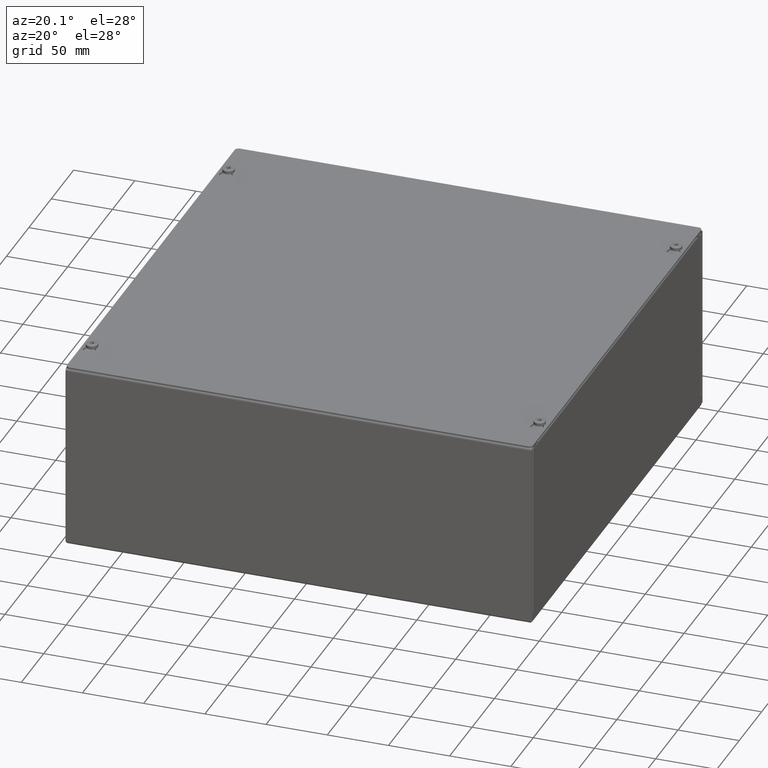
[diagram: clean part render]
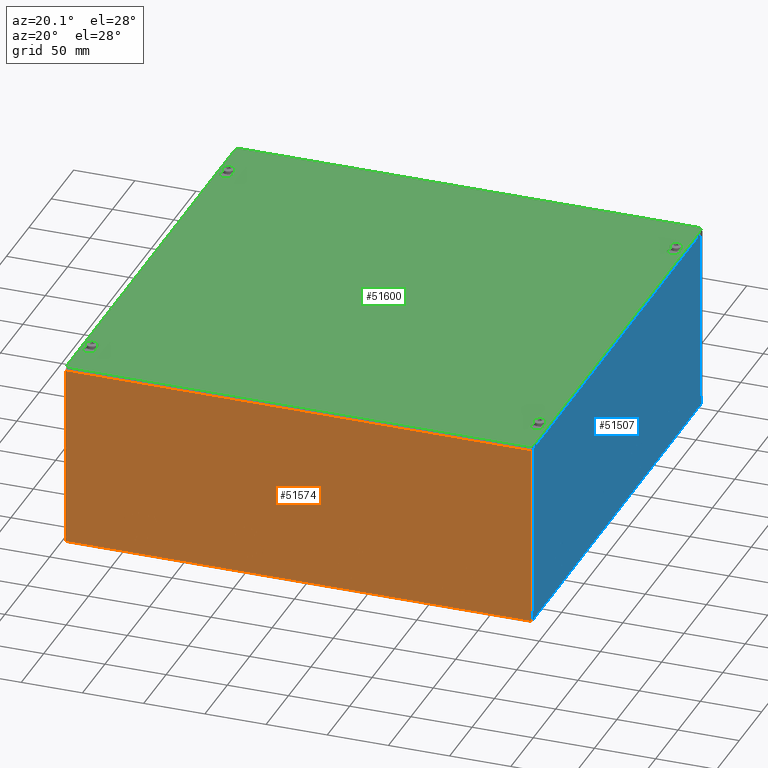
[diagram: same view with three faces highlighted in distinct colors, each labeled with its STEP entity id]
A machine part, auxiliary view with three faces highlighted in distinct colors.
Their STEP definitions:

[orange] entity #51574 — the highlighted planar face has unit normal (-0, 1, -0).
#4222=FACE_BOUND('',#9654,.T.);
#4223=FACE_BOUND('',#9655,.T.);
#4224=FACE_BOUND('',#9656,.T.);
#4225=FACE_BOUND('',#9657,.T.);
#4226=FACE_BOUND('',#9658,.T.);
#4227=FACE_BOUND('',#9659,.T.);
#4228=FACE_BOUND('',#9660,.T.);
#4229=FACE_BOUND('',#9661,.T.);
#4230=FACE_BOUND('',#9662,.T.);
#4231=FACE_BOUND('',#9663,.T.);
#4232=FACE_BOUND('',#9664,.T.);
#4233=FACE_BOUND('',#9665,.T.);
#4234=FACE_BOUND('',#9666,.T.);
#4235=FACE_BOUND('',#9667,.T.);
#4236=FACE_BOUND('',#9668,.T.);
#4237=FACE_BOUND('',#9669,.T.);
#4766=PLANE('',#54899);
#6747=FACE_OUTER_BOUND('',#9653,.T.);
#9653=EDGE_LOOP('',(#38566,#38567,#38568,#38569));
#9654=EDGE_LOOP('',(#38570,#38571,#38572,#38573));
#9655=EDGE_LOOP('',(#38574,#38575,#38576,#38577));
#9656=EDGE_LOOP('',(#38578,#38579,#38580,#38581));
#9657=EDGE_LOOP('',(#38582,#38583,#38584,#38585));
#9658=EDGE_LOOP('',(#38586,#38587,#38588,#38589));
#9659=EDGE_LOOP('',(#38590,#38591,#38592,#38593));
#9660=EDGE_LOOP('',(#38594,#38595,#38596,#38597));
#9661=EDGE_LOOP('',(#38598,#38599,#38600,#38601));
#9662=EDGE_LOOP('',(#38602,#38603,#38604,#38605));
#9663=EDGE_LOOP('',(#38606,#38607,#38608,#38609));
#9664=EDGE_LOOP('',(#38610,#38611,#38612,#38613));
#9665=EDGE_LOOP('',(#38614,#38615,#38616,#38617));
#9666=EDGE_LOOP('',(#38618,#38619,#38620,#38621));
#9667=EDGE_LOOP('',(#38622,#38623,#38624,#38625));
#9668=EDGE_LOOP('',(#38626,#38627,#38628,#38629));
#9669=EDGE_LOOP('',(#38630,#38631,#38632,#38633));
#12319=LINE('',#68079,#17760);
#12327=LINE('',#68106,#17768);
#12335=LINE('',#68127,#17776);
#12343=LINE('',#68154,#17784);
#12351=LINE('',#68175,#17792);
#12359=LINE('',#68202,#17800);
#12367=LINE('',#68223,#17808);
#12375=LINE('',#68250,#17816);
#12385=LINE('',#68283,#17826);
#12392=LINE('',#68302,#17833);
#12401=LINE('',#68331,#17842);
#12408=LINE('',#68350,#17849);
#12417=LINE('',#68379,#17858);
#12424=LINE('',#68398,#17865);
#12433=LINE('',#68427,#17874);
#12440=LINE('',#68446,#17881);
#12447=LINE('',#68463,#17888);
#12455=LINE('',#68490,#17896);
#12463=LINE('',#68511,#17904);
#12471=LINE('',#68538,#17912);
#12479=LINE('',#68559,#17920);
#12487=LINE('',#68586,#17928);
#12495=LINE('',#68607,#17936);
#12503=LINE('',#68634,#17944);
#12513=LINE('',#68667,#17954);
#12520=LINE('',#68686,#17961);
#12529=LINE('',#68715,#17970);
#12536=LINE('',#68734,#17977);
#12545=LINE('',#68763,#17986);
#12552=LINE('',#68782,#17993);
#12561=LINE('',#68811,#18002);
#12568=LINE('',#68830,#18009);
#13110=LINE('',#70343,#18551);
#13113=LINE('',#70349,#18554);
#13138=LINE('',#70826,#18579);
#13142=LINE('',#70834,#18583);
#17760=VECTOR('',#57067,0.393700787401575);
#17768=VECTOR('',#57097,0.393700787401575);
#17776=VECTOR('',#57115,0.393700787401575);
#17784=VECTOR('',#57145,0.393700787401575);
#17792=VECTOR('',#57163,0.393700787401575);
#17800=VECTOR('',#57193,0.393700787401575);
#17808=VECTOR('',#57211,0.393700787401575);
#17816=VECTOR('',#57241,0.393700787401575);
#17826=VECTOR('',#57273,0.393700787401575);
#17833=VECTOR('',#57296,0.393700787401575);
#17842=VECTOR('',#57321,0.393700787401575);
#17849=VECTOR('',#57344,0.393700787401575);
#17858=VECTOR('',#57369,0.393700787401575);
#17865=VECTOR('',#57392,0.393700787401575);
#17874=VECTOR('',#57417,0.393700787401575);
#17881=VECTOR('',#57440,0.393700787401575);
#17888=VECTOR('',#57451,0.393700787401575);
#17896=VECTOR('',#57481,0.393700787401575);
#17904=VECTOR('',#57499,0.393700787401575);
#17912=VECTOR('',#57529,0.393700787401575);
#17920=VECTOR('',#57547,0.393700787401575);
#17928=VECTOR('',#57577,0.393700787401575);
#17936=VECTOR('',#57595,0.393700787401575);
#17944=VECTOR('',#57625,0.393700787401575);
#17954=VECTOR('',#57657,0.393700787401575);
#17961=VECTOR('',#57680,0.393700787401575);
#17970=VECTOR('',#57705,0.393700787401575);
#17977=VECTOR('',#57728,0.393700787401575);
#17986=VECTOR('',#57753,0.393700787401575);
#17993=VECTOR('',#57776,0.393700787401575);
#18002=VECTOR('',#57801,0.393700787401575);
#18009=VECTOR('',#57824,0.393700787401575);
#18551=VECTOR('',#59354,0.393700787401575);
#18554=VECTOR('',#59359,0.393700787401575);
#18579=VECTOR('',#59434,0.393700787401575);
#18583=VECTOR('',#59446,0.393700787401575);
#23084=CIRCLE('',#54121,0.4375);
#23088=CIRCLE('',#54129,0.4374);
#23092=CIRCLE('',#54137,0.4375);
#23096=CIRCLE('',#54145,0.4374);
#23100=CIRCLE('',#54153,0.4375);
#23104=CIRCLE('',#54161,0.4374);
#23108=CIRCLE('',#54169,0.4375);
#23112=CIRCLE('',#54177,0.4374);
#23116=CIRCLE('',#54183,0.5625);
#23120=CIRCLE('',#54192,0.5624);
#23124=CIRCLE('',#54199,0.5625);
#23128=CIRCLE('',#54208,0.5624);
#23132=CIRCLE('',#54215,0.5625);
#23136=CIRCLE('',#54224,0.5624);
#23140=CIRCLE('',#54231,0.5625);
#23144=CIRCLE('',#54240,0.5624);
#23148=CIRCLE('',#54249,0.5624);
#23152=CIRCLE('',#54257,0.5625);
#23156=CIRCLE('',#54265,0.5624);
#23160=CIRCLE('',#54273,0.5625);
#23164=CIRCLE('',#54281,0.5624);
#23168=CIRCLE('',#54289,0.5625);
#23172=CIRCLE('',#54297,0.5624);
#23176=CIRCLE('',#54305,0.5625);
#23180=CIRCLE('',#54311,0.4375);
#23184=CIRCLE('',#54320,0.4374);
#23188=CIRCLE('',#54327,0.4375);
#23192=CIRCLE('',#54336,0.4374);
#23196=CIRCLE('',#54343,0.4375);
#23200=CIRCLE('',#54352,0.4374);
#23204=CIRCLE('',#54359,0.4375);
#23208=CIRCLE('',#54368,0.4374);
#23771=VERTEX_POINT('',#68076);
#23772=VERTEX_POINT('',#68078);
#23776=VERTEX_POINT('',#68090);
#23780=VERTEX_POINT('',#68105);
#23787=VERTEX_POINT('',#68124);
#23788=VERTEX_POINT('',#68126);
#23792=VERTEX_POINT('',#68138);
#23796=VERTEX_POINT('',#68153);
#23803=VERTEX_POINT('',#68172);
#23804=VERTEX_POINT('',#68174);
#23808=VERTEX_POINT('',#68186);
#23812=VERTEX_POINT('',#68201);
#23819=VERTEX_POINT('',#68220);
#23820=VERTEX_POINT('',#68222);
#23824=VERTEX_POINT('',#68234);
#23828=VERTEX_POINT('',#68249);
#23835=VERTEX_POINT('',#68268);
#23836=VERTEX_POINT('',#68270);
#23840=VERTEX_POINT('',#68282);
#23844=VERTEX_POINT('',#68297);
#23851=VERTEX_POINT('',#68316);
#23852=VERTEX_POINT('',#68318);
#23856=VERTEX_POINT('',#68330);
#23860=VERTEX_POINT('',#68345);
#23867=VERTEX_POINT('',#68364);
#23868=VERTEX_POINT('',#68366);
#23872=VERTEX_POINT('',#68378);
#23876=VERTEX_POINT('',#68393);
#23883=VERTEX_POINT('',#68412);
#23884=VERTEX_POINT('',#68414);
#23888=VERTEX_POINT('',#68426);
#23892=VERTEX_POINT('',#68441);
#23899=VERTEX_POINT('',#68460);
#23900=VERTEX_POINT('',#68462);
#23904=VERTEX_POINT('',#68474);
#23908=VERTEX_POINT('',#68489);
#23915=VERTEX_POINT('',#68508);
#23916=VERTEX_POINT('',#68510);
#23920=VERTEX_POINT('',#68522);
#23924=VERTEX_POINT('',#68537);
#23931=VERTEX_POINT('',#68556);
#23932=VERTEX_POINT('',#68558);
#23936=VERTEX_POINT('',#68570);
#23940=VERTEX_POINT('',#68585);
#23947=VERTEX_POINT('',#68604);
#23948=VERTEX_POINT('',#68606);
#23952=VERTEX_POINT('',#68618);
#23956=VERTEX_POINT('',#68633);
#23963=VERTEX_POINT('',#68652);
#23964=VERTEX_POINT('',#68654);
#23968=VERTEX_POINT('',#68666);
#23972=VERTEX_POINT('',#68681);
#23979=VERTEX_POINT('',#68700);
#23980=VERTEX_POINT('',#68702);
#23984=VERTEX_POINT('',#68714);
#23988=VERTEX_POINT('',#68729);
#23995=VERTEX_POINT('',#68748);
#23996=VERTEX_POINT('',#68750);
#24000=VERTEX_POINT('',#68762);
#24004=VERTEX_POINT('',#68777);
#24011=VERTEX_POINT('',#68796);
#24012=VERTEX_POINT('',#68798);
#24016=VERTEX_POINT('',#68810);
#24020=VERTEX_POINT('',#68825);
#24496=VERTEX_POINT('',#70330);
#24497=VERTEX_POINT('',#70334);
#24499=VERTEX_POINT('',#70347);
#24513=VERTEX_POINT('',#70494);
#28700=EDGE_CURVE('',#23772,#23771,#12319,.T.);
#28706=EDGE_CURVE('',#23776,#23772,#23084,.T.);
#28714=EDGE_CURVE('',#23780,#23776,#12327,.T.);
#28717=EDGE_CURVE('',#23771,#23780,#23088,.T.);
#28724=EDGE_CURVE('',#23788,#23787,#12335,.T.);
#28730=EDGE_CURVE('',#23792,#23788,#23092,.T.);
#28738=EDGE_CURVE('',#23796,#23792,#12343,.T.);
#28741=EDGE_CURVE('',#23787,#23796,#23096,.T.);
#28748=EDGE_CURVE('',#23804,#23803,#12351,.T.);
#28754=EDGE_CURVE('',#23808,#23804,#23100,.T.);
#28762=EDGE_CURVE('',#23812,#23808,#12359,.T.);
#28765=EDGE_CURVE('',#23803,#23812,#23104,.T.);
#28772=EDGE_CURVE('',#23820,#23819,#12367,.T.);
#28778=EDGE_CURVE('',#23824,#23820,#23108,.T.);
#28786=EDGE_CURVE('',#23828,#23824,#12375,.T.);
#28789=EDGE_CURVE('',#23819,#23828,#23112,.T.);
#28796=EDGE_CURVE('',#23836,#23835,#23116,.T.);
#28802=EDGE_CURVE('',#23840,#23836,#12385,.T.);
#28810=EDGE_CURVE('',#23844,#23840,#23120,.T.);
#28813=EDGE_CURVE('',#23835,#23844,#12392,.T.);
#28820=EDGE_CURVE('',#23852,#23851,#23124,.T.);
#28826=EDGE_CURVE('',#23856,#23852,#12401,.T.);
#28834=EDGE_CURVE('',#23860,#23856,#23128,.T.);
#28837=EDGE_CURVE('',#23851,#23860,#12408,.T.);
#28844=EDGE_CURVE('',#23868,#23867,#23132,.T.);
#28850=EDGE_CURVE('',#23872,#23868,#12417,.T.);
#28858=EDGE_CURVE('',#23876,#23872,#23136,.T.);
#28861=EDGE_CURVE('',#23867,#23876,#12424,.T.);
#28868=EDGE_CURVE('',#23884,#23883,#23140,.T.);
#28874=EDGE_CURVE('',#23888,#23884,#12433,.T.);
#28882=EDGE_CURVE('',#23892,#23888,#23144,.T.);
#28885=EDGE_CURVE('',#23883,#23892,#12440,.T.);
#28892=EDGE_CURVE('',#23900,#23899,#12447,.T.);
#28898=EDGE_CURVE('',#23904,#23900,#23148,.T.);
#28906=EDGE_CURVE('',#23908,#23904,#12455,.T.);
#28909=EDGE_CURVE('',#23899,#23908,#23152,.T.);
#28916=EDGE_CURVE('',#23916,#23915,#12463,.T.);
#28922=EDGE_CURVE('',#23920,#23916,#23156,.T.);
#28930=EDGE_CURVE('',#23924,#23920,#12471,.T.);
#28933=EDGE_CURVE('',#23915,#23924,#23160,.T.);
#28940=EDGE_CURVE('',#23932,#23931,#12479,.T.);
#28946=EDGE_CURVE('',#23936,#23932,#23164,.T.);
#28954=EDGE_CURVE('',#23940,#23936,#12487,.T.);
#28957=EDGE_CURVE('',#23931,#23940,#23168,.T.);
#28964=EDGE_CURVE('',#23948,#23947,#12495,.T.);
#28970=EDGE_CURVE('',#23952,#23948,#23172,.T.);
#28978=EDGE_CURVE('',#23956,#23952,#12503,.T.);
#28981=EDGE_CURVE('',#23947,#23956,#23176,.T.);
#28988=EDGE_CURVE('',#23964,#23963,#23180,.T.);
#28994=EDGE_CURVE('',#23968,#23964,#12513,.T.);
#29002=EDGE_CURVE('',#23972,#23968,#23184,.T.);
#29005=EDGE_CURVE('',#23963,#23972,#12520,.T.);
#29012=EDGE_CURVE('',#23980,#23979,#23188,.T.);
#29018=EDGE_CURVE('',#23984,#23980,#12529,.T.);
#29026=EDGE_CURVE('',#23988,#23984,#23192,.T.);
#29029=EDGE_CURVE('',#23979,#23988,#12536,.T.);
#29036=EDGE_CURVE('',#23996,#23995,#23196,.T.);
#29042=EDGE_CURVE('',#24000,#23996,#12545,.T.);
#29050=EDGE_CURVE('',#24004,#24000,#23200,.T.);
#29053=EDGE_CURVE('',#23995,#24004,#12552,.T.);
#29060=EDGE_CURVE('',#24012,#24011,#23204,.T.);
#29066=EDGE_CURVE('',#24016,#24012,#12561,.T.);
#29074=EDGE_CURVE('',#24020,#24016,#23208,.T.);
#29077=EDGE_CURVE('',#24011,#24020,#12568,.T.);
#29835=EDGE_CURVE('',#24496,#24497,#13110,.T.);
#29838=EDGE_CURVE('',#24497,#24499,#13113,.T.);
#29879=EDGE_CURVE('',#24499,#24513,#13138,.T.);
#29883=EDGE_CURVE('',#24513,#24496,#13142,.T.);
#38566=ORIENTED_EDGE('',*,*,#29835,.T.);
#38567=ORIENTED_EDGE('',*,*,#29838,.T.);
#38568=ORIENTED_EDGE('',*,*,#29879,.T.);
#38569=ORIENTED_EDGE('',*,*,#29883,.T.);
#38570=ORIENTED_EDGE('',*,*,#28714,.T.);
#38571=ORIENTED_EDGE('',*,*,#28706,.T.);
#38572=ORIENTED_EDGE('',*,*,#28700,.T.);
#38573=ORIENTED_EDGE('',*,*,#28717,.T.);
#38574=ORIENTED_EDGE('',*,*,#28738,.T.);
#38575=ORIENTED_EDGE('',*,*,#28730,.T.);
#38576=ORIENTED_EDGE('',*,*,#28724,.T.);
#38577=ORIENTED_EDGE('',*,*,#28741,.T.);
#38578=ORIENTED_EDGE('',*,*,#28762,.T.);
#38579=ORIENTED_EDGE('',*,*,#28754,.T.);
#38580=ORIENTED_EDGE('',*,*,#28748,.T.);
#38581=ORIENTED_EDGE('',*,*,#28765,.T.);
#38582=ORIENTED_EDGE('',*,*,#28786,.T.);
#38583=ORIENTED_EDGE('',*,*,#28778,.T.);
#38584=ORIENTED_EDGE('',*,*,#28772,.T.);
#38585=ORIENTED_EDGE('',*,*,#28789,.T.);
#38586=ORIENTED_EDGE('',*,*,#28810,.T.);
#38587=ORIENTED_EDGE('',*,*,#28802,.T.);
#38588=ORIENTED_EDGE('',*,*,#28796,.T.);
#38589=ORIENTED_EDGE('',*,*,#28813,.T.);
#38590=ORIENTED_EDGE('',*,*,#28834,.T.);
#38591=ORIENTED_EDGE('',*,*,#28826,.T.);
#38592=ORIENTED_EDGE('',*,*,#28820,.T.);
#38593=ORIENTED_EDGE('',*,*,#28837,.T.);
#38594=ORIENTED_EDGE('',*,*,#28858,.T.);
#38595=ORIENTED_EDGE('',*,*,#28850,.T.);
#38596=ORIENTED_EDGE('',*,*,#28844,.T.);
#38597=ORIENTED_EDGE('',*,*,#28861,.T.);
#38598=ORIENTED_EDGE('',*,*,#28882,.T.);
#38599=ORIENTED_EDGE('',*,*,#28874,.T.);
#38600=ORIENTED_EDGE('',*,*,#28868,.T.);
#38601=ORIENTED_EDGE('',*,*,#28885,.T.);
#38602=ORIENTED_EDGE('',*,*,#28906,.T.);
#38603=ORIENTED_EDGE('',*,*,#28898,.T.);
#38604=ORIENTED_EDGE('',*,*,#28892,.T.);
#38605=ORIENTED_EDGE('',*,*,#28909,.T.);
#38606=ORIENTED_EDGE('',*,*,#28930,.T.);
#38607=ORIENTED_EDGE('',*,*,#28922,.T.);
#38608=ORIENTED_EDGE('',*,*,#28916,.T.);
#38609=ORIENTED_EDGE('',*,*,#28933,.T.);
#38610=ORIENTED_EDGE('',*,*,#28954,.T.);
#38611=ORIENTED_EDGE('',*,*,#28946,.T.);
#38612=ORIENTED_EDGE('',*,*,#28940,.T.);
#38613=ORIENTED_EDGE('',*,*,#28957,.T.);
#38614=ORIENTED_EDGE('',*,*,#28978,.T.);
#38615=ORIENTED_EDGE('',*,*,#28970,.T.);
#38616=ORIENTED_EDGE('',*,*,#28964,.T.);
#38617=ORIENTED_EDGE('',*,*,#28981,.T.);
#38618=ORIENTED_EDGE('',*,*,#29002,.T.);
#38619=ORIENTED_EDGE('',*,*,#28994,.T.);
#38620=ORIENTED_EDGE('',*,*,#28988,.T.);
#38621=ORIENTED_EDGE('',*,*,#29005,.T.);
#38622=ORIENTED_EDGE('',*,*,#29026,.T.);
#38623=ORIENTED_EDGE('',*,*,#29018,.T.);
#38624=ORIENTED_EDGE('',*,*,#29012,.T.);
#38625=ORIENTED_EDGE('',*,*,#29029,.T.);
#38626=ORIENTED_EDGE('',*,*,#29050,.T.);
#38627=ORIENTED_EDGE('',*,*,#29042,.T.);
#38628=ORIENTED_EDGE('',*,*,#29036,.T.);
#38629=ORIENTED_EDGE('',*,*,#29053,.T.);
#38630=ORIENTED_EDGE('',*,*,#29074,.T.);
#38631=ORIENTED_EDGE('',*,*,#29066,.T.);
#38632=ORIENTED_EDGE('',*,*,#29060,.T.);
#38633=ORIENTED_EDGE('',*,*,#29077,.T.);
#51574=ADVANCED_FACE('',(#6747,#4222,#4223,#4224,#4225,#4226,#4227,#4228,
#4229,#4230,#4231,#4232,#4233,#4234,#4235,#4236,#4237),#4766,.F.);
#54121=AXIS2_PLACEMENT_3D('',#68091,#57080,#57081);
#54129=AXIS2_PLACEMENT_3D('',#68110,#57103,#57104);
#54137=AXIS2_PLACEMENT_3D('',#68139,#57128,#57129);
#54145=AXIS2_PLACEMENT_3D('',#68158,#57151,#57152);
#54153=AXIS2_PLACEMENT_3D('',#68187,#57176,#57177);
#54161=AXIS2_PLACEMENT_3D('',#68206,#57199,#57200);
#54169=AXIS2_PLACEMENT_3D('',#68235,#57224,#57225);
#54177=AXIS2_PLACEMENT_3D('',#68254,#57247,#57248);
#54183=AXIS2_PLACEMENT_3D('',#68271,#57262,#57263);
#54192=AXIS2_PLACEMENT_3D('',#68298,#57290,#57291);
#54199=AXIS2_PLACEMENT_3D('',#68319,#57310,#57311);
#54208=AXIS2_PLACEMENT_3D('',#68346,#57338,#57339);
#54215=AXIS2_PLACEMENT_3D('',#68367,#57358,#57359);
#54224=AXIS2_PLACEMENT_3D('',#68394,#57386,#57387);
#54231=AXIS2_PLACEMENT_3D('',#68415,#57406,#57407);
#54240=AXIS2_PLACEMENT_3D('',#68442,#57434,#57435);
#54249=AXIS2_PLACEMENT_3D('',#68475,#57464,#57465);
#54257=AXIS2_PLACEMENT_3D('',#68494,#57487,#57488);
#54265=AXIS2_PLACEMENT_3D('',#68523,#57512,#57513);
#54273=AXIS2_PLACEMENT_3D('',#68542,#57535,#57536);
#54281=AXIS2_PLACEMENT_3D('',#68571,#57560,#57561);
#54289=AXIS2_PLACEMENT_3D('',#68590,#57583,#57584);
#54297=AXIS2_PLACEMENT_3D('',#68619,#57608,#57609);
#54305=AXIS2_PLACEMENT_3D('',#68638,#57631,#57632);
#54311=AXIS2_PLACEMENT_3D('',#68655,#57646,#57647);
#54320=AXIS2_PLACEMENT_3D('',#68682,#57674,#57675);
#54327=AXIS2_PLACEMENT_3D('',#68703,#57694,#57695);
#54336=AXIS2_PLACEMENT_3D('',#68730,#57722,#57723);
#54343=AXIS2_PLACEMENT_3D('',#68751,#57742,#57743);
#54352=AXIS2_PLACEMENT_3D('',#68778,#57770,#57771);
#54359=AXIS2_PLACEMENT_3D('',#68799,#57790,#57791);
#54368=AXIS2_PLACEMENT_3D('',#68826,#57818,#57819);
#54899=AXIS2_PLACEMENT_3D('',#70842,#59459,#59460);
#57067=DIRECTION('',(-5.2209918857147E-63,-5.02883480007353E-31,-1.));
#57080=DIRECTION('center_axis',(-1.03821105549905E-32,1.,-5.02883480007353E-31));
#57081=DIRECTION('ref_axis',(-1.,0.,0.));
#57097=DIRECTION('',(-5.2209918857147E-63,-5.02883480007353E-31,-1.));
#57103=DIRECTION('center_axis',(1.03821105549905E-32,-1.,5.02883480007353E-31));
#57104=DIRECTION('ref_axis',(1.,0.,0.));
#57115=DIRECTION('',(-6.96423270684459E-12,-5.02883480007425E-31,-1.));
#57128=DIRECTION('center_axis',(-1.03821105549905E-32,1.,-5.02883480007353E-31));
#57129=DIRECTION('ref_axis',(-1.,0.,0.));
#57145=DIRECTION('',(6.96423270685671E-12,-5.02883480007281E-31,-1.));
#57151=DIRECTION('center_axis',(1.03821105549905E-32,-1.,5.02883480007353E-31));
#57152=DIRECTION('ref_axis',(1.,0.,0.));
#57163=DIRECTION('',(-5.2209918857147E-63,-5.02883480007353E-31,-1.));
#57176=DIRECTION('center_axis',(-1.03821105549905E-32,1.,-5.02883480007353E-31));
#57177=DIRECTION('ref_axis',(-1.,0.,0.));
#57193=DIRECTION('',(-5.2209918857147E-63,-5.02883480007353E-31,-1.));
#57199=DIRECTION('center_axis',(1.03821105549905E-32,-1.,5.02883480007353E-31));
#57200=DIRECTION('ref_axis',(1.,0.,0.));
#57211=DIRECTION('',(-5.2209918857147E-63,-5.02883480007353E-31,-1.));
#57224=DIRECTION('center_axis',(-1.03821105549905E-32,1.,-5.02883480007353E-31));
#57225=DIRECTION('ref_axis',(-1.,0.,0.));
#57241=DIRECTION('',(-5.2209918857147E-63,-5.02883480007353E-31,-1.));
#57247=DIRECTION('center_axis',(1.03821105549905E-32,-1.,5.02883480007353E-31));
#57248=DIRECTION('ref_axis',(1.,0.,0.));
#57262=DIRECTION('center_axis',(-1.03821105549905E-32,1.,-5.02883480007353E-31));
#57263=DIRECTION('ref_axis',(-1.,0.,0.));
#57273=DIRECTION('',(1.,1.03821105549905E-32,0.));
#57290=DIRECTION('center_axis',(1.03821105549905E-32,-1.,5.02883480007353E-31));
#57291=DIRECTION('ref_axis',(1.,0.,0.));
#57296=DIRECTION('',(1.,1.03821105549905E-32,0.));
#57310=DIRECTION('center_axis',(-1.03821105549905E-32,1.,-5.02883480007353E-31));
#57311=DIRECTION('ref_axis',(-1.,0.,0.));
#57321=DIRECTION('',(1.,1.03821105549905E-32,0.));
#57338=DIRECTION('center_axis',(1.03821105549905E-32,-1.,5.02883480007353E-31));
#57339=DIRECTION('ref_axis',(1.,0.,0.));
#57344=DIRECTION('',(1.,1.03821105549905E-32,0.));
#57358=DIRECTION('center_axis',(-1.03821105549905E-32,1.,-5.02883480007353E-31));
#57359=DIRECTION('ref_axis',(-1.,0.,0.));
#57369=DIRECTION('',(1.,1.03821105549905E-32,0.));
#57386=DIRECTION('center_axis',(1.03821105549905E-32,-1.,5.02883480007353E-31));
#57387=DIRECTION('ref_axis',(1.,0.,0.));
#57392=DIRECTION('',(1.,1.03821105549905E-32,0.));
#57406=DIRECTION('center_axis',(-1.03821105549905E-32,1.,-5.02883480007353E-31));
#57407=DIRECTION('ref_axis',(-1.,0.,0.));
#57417=DIRECTION('',(1.,1.03821105549905E-32,0.));
#57434=DIRECTION('center_axis',(1.03821105549905E-32,-1.,5.02883480007353E-31));
#57435=DIRECTION('ref_axis',(1.,0.,0.));
#57440=DIRECTION('',(1.,1.03821105549905E-32,0.));
#57451=DIRECTION('',(-1.,-1.03821105549905E-32,0.));
#57464=DIRECTION('center_axis',(1.03821105549905E-32,-1.,5.02883480007353E-31));
#57465=DIRECTION('ref_axis',(1.,0.,0.));
#57481=DIRECTION('',(-1.,-1.03821105549905E-32,0.));
#57487=DIRECTION('center_axis',(-1.03821105549905E-32,1.,-5.02883480007353E-31));
#57488=DIRECTION('ref_axis',(-1.,0.,0.));
#57499=DIRECTION('',(-1.,-1.03821105549905E-32,0.));
#57512=DIRECTION('center_axis',(1.03821105549905E-32,-1.,5.02883480007353E-31));
#57513=DIRECTION('ref_axis',(1.,0.,0.));
#57529=DIRECTION('',(-1.,-1.03821105549905E-32,0.));
#57535=DIRECTION('center_axis',(-1.03821105549905E-32,1.,-5.02883480007353E-31));
#57536=DIRECTION('ref_axis',(-1.,0.,0.));
#57547=DIRECTION('',(-1.,-1.03821105549905E-32,0.));
#57560=DIRECTION('center_axis',(1.03821105549905E-32,-1.,5.02883480007353E-31));
#57561=DIRECTION('ref_axis',(1.,0.,0.));
#57577=DIRECTION('',(-1.,-1.03821105549905E-32,0.));
#57583=DIRECTION('center_axis',(-1.03821105549905E-32,1.,-5.02883480007353E-31));
#57584=DIRECTION('ref_axis',(-1.,0.,0.));
#57595=DIRECTION('',(-1.,-1.03821105549905E-32,0.));
#57608=DIRECTION('center_axis',(1.03821105549905E-32,-1.,5.02883480007353E-31));
#57609=DIRECTION('ref_axis',(1.,0.,0.));
#57625=DIRECTION('',(-1.,-1.03821105549905E-32,0.));
#57631=DIRECTION('center_axis',(-1.03821105549905E-32,1.,-5.02883480007353E-31));
#57632=DIRECTION('ref_axis',(-1.,0.,0.));
#57646=DIRECTION('center_axis',(-1.03821105549905E-32,1.,-5.02883480007353E-31));
#57647=DIRECTION('ref_axis',(-1.,0.,0.));
#57657=DIRECTION('',(5.2209918857147E-63,5.02883480007353E-31,1.));
#57674=DIRECTION('center_axis',(1.03821105549905E-32,-1.,5.02883480007353E-31));
#57675=DIRECTION('ref_axis',(1.,0.,0.));
#57680=DIRECTION('',(5.2209918857147E-63,5.02883480007353E-31,1.));
#57694=DIRECTION('center_axis',(-1.03821105549905E-32,1.,-5.02883480007353E-31));
#57695=DIRECTION('ref_axis',(-1.,0.,0.));
#57705=DIRECTION('',(1.39284654137377E-11,5.02883480007498E-31,1.));
#57722=DIRECTION('center_axis',(1.03821105549905E-32,-1.,5.02883480007353E-31));
#57723=DIRECTION('ref_axis',(1.,0.,0.));
#57728=DIRECTION('',(-1.39284654137256E-11,5.02883480007208E-31,1.));
#57742=DIRECTION('center_axis',(-1.03821105549905E-32,1.,-5.02883480007353E-31));
#57743=DIRECTION('ref_axis',(-1.,0.,0.));
#57753=DIRECTION('',(5.2209918857147E-63,5.02883480007353E-31,1.));
#57770=DIRECTION('center_axis',(1.03821105549905E-32,-1.,5.02883480007353E-31));
#57771=DIRECTION('ref_axis',(1.,0.,0.));
#57776=DIRECTION('',(5.2209918857147E-63,5.02883480007353E-31,1.));
#57790=DIRECTION('center_axis',(-1.03821105549905E-32,1.,-5.02883480007353E-31));
#57791=DIRECTION('ref_axis',(-1.,0.,0.));
#57801=DIRECTION('',(1.39284654137377E-11,5.02883480007498E-31,1.));
#57818=DIRECTION('center_axis',(1.03821105549905E-32,-1.,5.02883480007353E-31));
#57819=DIRECTION('ref_axis',(1.,0.,0.));
#57824=DIRECTION('',(-1.39284654137377E-11,5.02883480007208E-31,1.));
#59354=DIRECTION('',(-1.,-1.03821105549905E-32,0.));
#59359=DIRECTION('',(0.,-6.12323399573677E-17,-1.));
#59434=DIRECTION('',(1.,1.03821105549905E-32,0.));
#59446=DIRECTION('',(0.,6.12323399573677E-17,1.));
#59459=DIRECTION('center_axis',(-1.03821105549905E-32,1.,-5.02883480007353E-31));
#59460=DIRECTION('ref_axis',(0.,5.02883480007353E-31,1.));
#68076=CARTESIAN_POINT('',(5.0225,-7.5,1.49806717048005));
#68078=CARTESIAN_POINT('',(5.0225,-7.5,1.49816759117474));
#68079=CARTESIAN_POINT('',(5.0225,-7.5,2.24903358524003));
#68090=CARTESIAN_POINT('',(5.0225,-7.5,0.62683240882526));
#68091=CARTESIAN_POINT('Origin',(5.0625,-7.5,1.0625));
#68105=CARTESIAN_POINT('',(5.0225,-7.5,0.626932829519946));
#68106=CARTESIAN_POINT('',(5.0225,-7.5,1.81341620441263));
#68110=CARTESIAN_POINT('Origin',(5.0625,-7.5,1.0625));
#68124=CARTESIAN_POINT('',(1.6475,-7.5,1.49806717048005));
#68126=CARTESIAN_POINT('',(1.6475,-7.5,1.49816759117474));
#68127=CARTESIAN_POINT('',(1.64750000000523,-7.5,2.24903358523429));
#68138=CARTESIAN_POINT('',(1.6475,-7.5,0.62683240882526));
#68139=CARTESIAN_POINT('Origin',(1.6875,-7.5,1.0625));
#68153=CARTESIAN_POINT('',(1.6475,-7.5,0.626932829519946));
#68154=CARTESIAN_POINT('',(1.64749999999174,-7.5,1.81341620441837));
#68158=CARTESIAN_POINT('Origin',(1.6875,-7.5,1.0625));
#68172=CARTESIAN_POINT('',(-5.1025,-7.5,1.49806717048005));
#68174=CARTESIAN_POINT('',(-5.1025,-7.5,1.49816759117474));
#68175=CARTESIAN_POINT('',(-5.1025,-7.5,2.24903358524003));
#68186=CARTESIAN_POINT('',(-5.1025,-7.5,0.62683240882526));
#68187=CARTESIAN_POINT('Origin',(-5.0625,-7.5,1.0625));
#68201=CARTESIAN_POINT('',(-5.1025,-7.5,0.626932829519946));
#68202=CARTESIAN_POINT('',(-5.1025,-7.5,1.81341620441263));
#68206=CARTESIAN_POINT('Origin',(-5.0625,-7.5,1.0625));
#68220=CARTESIAN_POINT('',(-1.7275,-7.5,1.49806717048005));
#68222=CARTESIAN_POINT('',(-1.7275,-7.5,1.49816759117474));
#68223=CARTESIAN_POINT('',(-1.7275,-7.5,2.24903358524003));
#68234=CARTESIAN_POINT('',(-1.7275,-7.5,0.62683240882526));
#68235=CARTESIAN_POINT('Origin',(-1.6875,-7.5,1.0625));
#68249=CARTESIAN_POINT('',(-1.7275,-7.5,0.626932829519946));
#68250=CARTESIAN_POINT('',(-1.7275,-7.5,1.81341620441263));
#68254=CARTESIAN_POINT('Origin',(-1.6875,-7.5,1.0625));
#68268=CARTESIAN_POINT('',(4.50222662922463,-7.5,1.0125));
#68270=CARTESIAN_POINT('',(5.62277337077537,-7.5,1.0125));
#68271=CARTESIAN_POINT('Origin',(5.0625,-7.5,1.0625));
#68282=CARTESIAN_POINT('',(5.62267297328593,-7.5,1.0125));
#68283=CARTESIAN_POINT('',(2.81138668538769,-7.5,1.0125));
#68297=CARTESIAN_POINT('',(4.50232702671407,-7.5,1.0125));
#68298=CARTESIAN_POINT('Origin',(5.0625,-7.5,1.0625));
#68302=CARTESIAN_POINT('',(2.25116351335703,-7.5,1.0125));
#68316=CARTESIAN_POINT('',(1.12722662922463,-7.5,1.0125));
#68318=CARTESIAN_POINT('',(2.24777337077537,-7.5,1.0125));
#68319=CARTESIAN_POINT('Origin',(1.6875,-7.5,1.0625));
#68330=CARTESIAN_POINT('',(2.24767297328593,-7.5,1.0125));
#68331=CARTESIAN_POINT('',(1.12388668538769,-7.5,1.0125));
#68345=CARTESIAN_POINT('',(1.12732702671407,-7.5,1.0125));
#68346=CARTESIAN_POINT('Origin',(1.6875,-7.5,1.0625));
#68350=CARTESIAN_POINT('',(0.563663513357035,-7.5,1.0125));
#68364=CARTESIAN_POINT('',(-5.62277337077537,-7.5,1.0125));
#68366=CARTESIAN_POINT('',(-4.50222662922462,-7.5,1.0125));
#68367=CARTESIAN_POINT('Origin',(-5.0625,-7.5,1.0625));
#68378=CARTESIAN_POINT('',(-4.50232702671407,-7.5,1.0125));
#68379=CARTESIAN_POINT('',(-2.25111331461231,-7.5,1.0125));
#68393=CARTESIAN_POINT('',(-5.62267297328593,-7.5,1.0125));
#68394=CARTESIAN_POINT('Origin',(-5.0625,-7.5,1.0625));
#68398=CARTESIAN_POINT('',(-2.81133648664297,-7.5,1.0125));
#68412=CARTESIAN_POINT('',(-2.24777337077537,-7.5,1.0125));
#68414=CARTESIAN_POINT('',(-1.12722662922463,-7.5,1.0125));
#68415=CARTESIAN_POINT('Origin',(-1.6875,-7.5,1.0625));
#68426=CARTESIAN_POINT('',(-1.12732702671407,-7.5,1.0125));
#68427=CARTESIAN_POINT('',(-0.563613314612313,-7.5,1.0125));
#68441=CARTESIAN_POINT('',(-2.24767297328593,-7.5,1.0125));
#68442=CARTESIAN_POINT('Origin',(-1.6875,-7.5,1.0625));
#68446=CARTESIAN_POINT('',(-1.12383648664297,-7.5,1.0125));
#68460=CARTESIAN_POINT('',(-2.24777337077537,-7.5,1.1125));
#68462=CARTESIAN_POINT('',(-2.24767297328593,-7.5,1.1125));
#68463=CARTESIAN_POINT('',(-1.12388668538769,-7.5,1.1125));
#68474=CARTESIAN_POINT('',(-1.12732702671407,-7.5,1.1125));
#68475=CARTESIAN_POINT('Origin',(-1.6875,-7.5,1.0625));
#68489=CARTESIAN_POINT('',(-1.12722662922463,-7.5,1.1125));
#68490=CARTESIAN_POINT('',(-0.563663513357034,-7.5,1.1125));
#68494=CARTESIAN_POINT('Origin',(-1.6875,-7.5,1.0625));
#68508=CARTESIAN_POINT('',(-5.62277337077537,-7.5,1.1125));
#68510=CARTESIAN_POINT('',(-5.62267297328593,-7.5,1.1125));
#68511=CARTESIAN_POINT('',(-2.81138668538769,-7.5,1.1125));
#68522=CARTESIAN_POINT('',(-4.50232702671407,-7.5,1.1125));
#68523=CARTESIAN_POINT('Origin',(-5.0625,-7.5,1.0625));
#68537=CARTESIAN_POINT('',(-4.50222662922462,-7.5,1.1125));
#68538=CARTESIAN_POINT('',(-2.25116351335703,-7.5,1.1125));
#68542=CARTESIAN_POINT('Origin',(-5.0625,-7.5,1.0625));
#68556=CARTESIAN_POINT('',(1.12722662922463,-7.5,1.1125));
#68558=CARTESIAN_POINT('',(1.12732702671407,-7.5,1.1125));
#68559=CARTESIAN_POINT('',(0.563613314612313,-7.5,1.1125));
#68570=CARTESIAN_POINT('',(2.24767297328593,-7.5,1.1125));
#68571=CARTESIAN_POINT('Origin',(1.6875,-7.5,1.0625));
#68585=CARTESIAN_POINT('',(2.24777337077537,-7.5,1.1125));
#68586=CARTESIAN_POINT('',(1.12383648664297,-7.5,1.1125));
#68590=CARTESIAN_POINT('Origin',(1.6875,-7.5,1.0625));
#68604=CARTESIAN_POINT('',(4.50222662922463,-7.5,1.1125));
#68606=CARTESIAN_POINT('',(4.50232702671407,-7.5,1.1125));
#68607=CARTESIAN_POINT('',(2.25111331461231,-7.5,1.1125));
#68618=CARTESIAN_POINT('',(5.62267297328593,-7.5,1.1125));
#68619=CARTESIAN_POINT('Origin',(5.0625,-7.5,1.0625));
#68633=CARTESIAN_POINT('',(5.62277337077537,-7.5,1.1125));
#68634=CARTESIAN_POINT('',(2.81133648664297,-7.5,1.1125));
#68638=CARTESIAN_POINT('Origin',(5.0625,-7.5,1.0625));
#68652=CARTESIAN_POINT('',(-1.6475,-7.5,0.62683240882526));
#68654=CARTESIAN_POINT('',(-1.6475,-7.5,1.49816759117474));
#68655=CARTESIAN_POINT('Origin',(-1.6875,-7.5,1.0625));
#68666=CARTESIAN_POINT('',(-1.6475,-7.5,1.49806717048005));
#68667=CARTESIAN_POINT('',(-1.6475,-7.5,2.24908379558737));
#68681=CARTESIAN_POINT('',(-1.6475,-7.5,0.626932829519946));
#68682=CARTESIAN_POINT('Origin',(-1.6875,-7.5,1.0625));
#68686=CARTESIAN_POINT('',(-1.6475,-7.5,1.81346641475997));
#68700=CARTESIAN_POINT('',(-5.0225,-7.5,0.626832408825261));
#68702=CARTESIAN_POINT('',(-5.0225,-7.5,1.49816759117474));
#68703=CARTESIAN_POINT('Origin',(-5.0625,-7.5,1.0625));
#68714=CARTESIAN_POINT('',(-5.0225,-7.5,1.49806717048005));
#68715=CARTESIAN_POINT('',(-5.02249999998954,-7.5,2.24908379562235));
#68729=CARTESIAN_POINT('',(-5.0225,-7.5,0.626932829519947));
#68730=CARTESIAN_POINT('Origin',(-5.0625,-7.5,1.0625));
#68734=CARTESIAN_POINT('',(-5.02250000001653,-7.5,1.813466414725));
#68748=CARTESIAN_POINT('',(1.7275,-7.5,0.62683240882526));
#68750=CARTESIAN_POINT('',(1.7275,-7.5,1.49816759117474));
#68751=CARTESIAN_POINT('Origin',(1.6875,-7.5,1.0625));
#68762=CARTESIAN_POINT('',(1.7275,-7.5,1.49806717048005));
#68763=CARTESIAN_POINT('',(1.7275,-7.5,2.24908379558737));
#68777=CARTESIAN_POINT('',(1.7275,-7.5,0.626932829519946));
#68778=CARTESIAN_POINT('Origin',(1.6875,-7.5,1.0625));
#68782=CARTESIAN_POINT('',(1.7275,-7.5,1.81346641475997));
#68796=CARTESIAN_POINT('',(5.1025,-7.5,0.62683240882526));
#68798=CARTESIAN_POINT('',(5.1025,-7.5,1.49816759117474));
#68799=CARTESIAN_POINT('Origin',(5.0625,-7.5,1.0625));
#68810=CARTESIAN_POINT('',(5.1025,-7.5,1.49806717048005));
#68811=CARTESIAN_POINT('',(5.10250000001046,-7.5,2.24908379555184));
#68825=CARTESIAN_POINT('',(5.1025,-7.5,0.626932829519946));
#68826=CARTESIAN_POINT('Origin',(5.0625,-7.5,1.0625));
#68830=CARTESIAN_POINT('',(5.10249999998347,-7.5,1.81346641479551));
#70330=CARTESIAN_POINT('',(7.5,-7.5,5.914));
#70334=CARTESIAN_POINT('',(-7.5,-7.5,5.914));
#70343=CARTESIAN_POINT('',(-3.75,-7.5,5.914));
#70347=CARTESIAN_POINT('',(-7.5,-7.5,0.086));
#70349=CARTESIAN_POINT('',(-7.5,-7.5,6.));
#70494=CARTESIAN_POINT('',(7.5,-7.5,0.086));
#70826=CARTESIAN_POINT('',(3.75,-7.5,0.0860000000000001));
#70834=CARTESIAN_POINT('',(7.5,-7.5,0.));
#70842=CARTESIAN_POINT('Origin',(0.,-7.5,3.));

[blue] entity #51507 — the highlighted planar face has unit normal (1, 0, 0).
#4130=FACE_BOUND('',#9495,.T.);
#4131=FACE_BOUND('',#9496,.T.);
#4132=FACE_BOUND('',#9497,.T.);
#4133=FACE_BOUND('',#9498,.T.);
#4134=FACE_BOUND('',#9499,.T.);
#4135=FACE_BOUND('',#9500,.T.);
#4136=FACE_BOUND('',#9501,.T.);
#4137=FACE_BOUND('',#9502,.T.);
#4138=FACE_BOUND('',#9503,.T.);
#4139=FACE_BOUND('',#9504,.T.);
#4140=FACE_BOUND('',#9505,.T.);
#4141=FACE_BOUND('',#9506,.T.);
#4142=FACE_BOUND('',#9507,.T.);
#4143=FACE_BOUND('',#9508,.T.);
#4144=FACE_BOUND('',#9509,.T.);
#4145=FACE_BOUND('',#9510,.T.);
#4721=PLANE('',#54808);
#6680=FACE_OUTER_BOUND('',#9494,.T.);
#9494=EDGE_LOOP('',(#37898,#37899,#37900,#37901,#37902,#37903,#37904,#37905,
#37906,#37907,#37908,#37909,#37910,#37911,#37912,#37913,#37914,#37915,#37916,
#37917,#37918,#37919));
#9495=EDGE_LOOP('',(#37920,#37921,#37922,#37923));
#9496=EDGE_LOOP('',(#37924,#37925,#37926,#37927));
#9497=EDGE_LOOP('',(#37928,#37929,#37930,#37931));
#9498=EDGE_LOOP('',(#37932,#37933,#37934,#37935));
#9499=EDGE_LOOP('',(#37936,#37937,#37938,#37939));
#9500=EDGE_LOOP('',(#37940,#37941,#37942,#37943));
#9501=EDGE_LOOP('',(#37944,#37945,#37946,#37947));
#9502=EDGE_LOOP('',(#37948,#37949,#37950,#37951));
#9503=EDGE_LOOP('',(#37952,#37953,#37954,#37955));
#9504=EDGE_LOOP('',(#37956,#37957,#37958,#37959));
#9505=EDGE_LOOP('',(#37960,#37961,#37962,#37963));
#9506=EDGE_LOOP('',(#37964,#37965,#37966,#37967));
#9507=EDGE_LOOP('',(#37968,#37969,#37970,#37971));
#9508=EDGE_LOOP('',(#37972,#37973,#37974,#37975));
#9509=EDGE_LOOP('',(#37976,#37977,#37978,#37979));
#9510=EDGE_LOOP('',(#37980,#37981,#37982,#37983));
#12194=LINE('',#67813,#17635);
#12196=LINE('',#67819,#17637);
#12200=LINE('',#67825,#17641);
#12202=LINE('',#67831,#17643);
#12208=LINE('',#67843,#17649);
#12210=LINE('',#67846,#17651);
#12231=LINE('',#67891,#17672);
#12236=LINE('',#67900,#17677);
#12237=LINE('',#67903,#17678);
#12575=LINE('',#68847,#18016);
#12583=LINE('',#68874,#18024);
#12591=LINE('',#68895,#18032);
#12599=LINE('',#68922,#18040);
#12607=LINE('',#68943,#18048);
#12615=LINE('',#68970,#18056);
#12623=LINE('',#68991,#18064);
#12631=LINE('',#69018,#18072);
#12644=LINE('',#69057,#18085);
#12648=LINE('',#69070,#18089);
#12660=LINE('',#69105,#18101);
#12664=LINE('',#69118,#18105);
#12676=LINE('',#69153,#18117);
#12680=LINE('',#69166,#18121);
#12692=LINE('',#69201,#18133);
#12696=LINE('',#69214,#18137);
#12703=LINE('',#69231,#18144);
#12711=LINE('',#69258,#18152);
#12719=LINE('',#69279,#18160);
#12727=LINE('',#69306,#18168);
#12735=LINE('',#69327,#18176);
#12743=LINE('',#69354,#18184);
#12751=LINE('',#69375,#18192);
#12759=LINE('',#69402,#18200);
#12772=LINE('',#69441,#18213);
#12776=LINE('',#69454,#18217);
#12788=LINE('',#69489,#18229);
#12792=LINE('',#69502,#18233);
#12804=LINE('',#69537,#18245);
#12808=LINE('',#69550,#18249);
#12820=LINE('',#69585,#18261);
#12824=LINE('',#69598,#18265);
#12834=LINE('',#69645,#18275);
#12849=LINE('',#69679,#18290);
#13057=LINE('',#70201,#18498);
#13059=LINE('',#70205,#18500);
#13061=LINE('',#70210,#18502);
#13063=LINE('',#70213,#18504);
#13064=LINE('',#70216,#18505);
#13065=LINE('',#70218,#18506);
#13066=LINE('',#70220,#18507);
#13067=LINE('',#70222,#18508);
#13068=LINE('',#70224,#18509);
#13069=LINE('',#70226,#18510);
#13070=LINE('',#70227,#18511);
#17635=VECTOR('',#56856,0.393700787401575);
#17637=VECTOR('',#56860,0.393700787401575);
#17641=VECTOR('',#56866,0.393700787401575);
#17643=VECTOR('',#56870,0.393700787401575);
#17649=VECTOR('',#56878,0.393700787401575);
#17651=VECTOR('',#56882,0.393700787401575);
#17672=VECTOR('',#56917,0.393700787401575);
#17677=VECTOR('',#56924,0.393700787401575);
#17678=VECTOR('',#56927,0.393700787401575);
#18016=VECTOR('',#57835,0.393700787401575);
#18024=VECTOR('',#57865,0.393700787401575);
#18032=VECTOR('',#57883,0.393700787401575);
#18040=VECTOR('',#57913,0.393700787401575);
#18048=VECTOR('',#57931,0.393700787401575);
#18056=VECTOR('',#57961,0.393700787401575);
#18064=VECTOR('',#57979,0.393700787401575);
#18072=VECTOR('',#58009,0.393700787401575);
#18085=VECTOR('',#58046,0.393700787401575);
#18089=VECTOR('',#58064,0.393700787401575);
#18101=VECTOR('',#58094,0.393700787401575);
#18105=VECTOR('',#58112,0.393700787401575);
#18117=VECTOR('',#58142,0.393700787401575);
#18121=VECTOR('',#58160,0.393700787401575);
#18133=VECTOR('',#58190,0.393700787401575);
#18137=VECTOR('',#58208,0.393700787401575);
#18144=VECTOR('',#58219,0.393700787401575);
#18152=VECTOR('',#58249,0.393700787401575);
#18160=VECTOR('',#58267,0.393700787401575);
#18168=VECTOR('',#58297,0.393700787401575);
#18176=VECTOR('',#58315,0.393700787401575);
#18184=VECTOR('',#58345,0.393700787401575);
#18192=VECTOR('',#58363,0.393700787401575);
#18200=VECTOR('',#58393,0.393700787401575);
#18213=VECTOR('',#58430,0.393700787401575);
#18217=VECTOR('',#58448,0.393700787401575);
#18229=VECTOR('',#58478,0.393700787401575);
#18233=VECTOR('',#58496,0.393700787401575);
#18245=VECTOR('',#58526,0.393700787401575);
#18249=VECTOR('',#58544,0.393700787401575);
#18261=VECTOR('',#58574,0.393700787401575);
#18265=VECTOR('',#58592,0.393700787401575);
#18275=VECTOR('',#58646,0.393700787401575);
#18290=VECTOR('',#58685,0.393700787401575);
#18498=VECTOR('',#59183,0.393700787401575);
#18500=VECTOR('',#59187,0.393700787401575);
#18502=VECTOR('',#59191,0.393700787401575);
#18504=VECTOR('',#59195,0.393700787401575);
#18505=VECTOR('',#59198,0.393700787401575);
#18506=VECTOR('',#59199,0.393700787401575);
#18507=VECTOR('',#59200,0.393700787401575);
#18508=VECTOR('',#59201,0.393700787401575);
#18509=VECTOR('',#59202,0.393700787401575);
#18510=VECTOR('',#59203,0.393700787401575);
#18511=VECTOR('',#59204,0.393700787401575);
#23214=CIRCLE('',#54380,0.4374);
#23216=CIRCLE('',#54385,0.4375);
#23222=CIRCLE('',#54396,0.4374);
#23224=CIRCLE('',#54401,0.4375);
#23230=CIRCLE('',#54412,0.4374);
#23232=CIRCLE('',#54417,0.4375);
#23238=CIRCLE('',#54428,0.4374);
#23240=CIRCLE('',#54433,0.4375);
#23244=CIRCLE('',#54439,0.5625);
#23248=CIRCLE('',#54448,0.5624);
#23252=CIRCLE('',#54455,0.5625);
#23256=CIRCLE('',#54464,0.5624);
#23260=CIRCLE('',#54471,0.5625);
#23264=CIRCLE('',#54480,0.5624);
#23268=CIRCLE('',#54487,0.5625);
#23272=CIRCLE('',#54496,0.5624);
#23278=CIRCLE('',#54508,0.5625);
#23280=CIRCLE('',#54513,0.5624);
#23286=CIRCLE('',#54524,0.5625);
#23288=CIRCLE('',#54529,0.5624);
#23294=CIRCLE('',#54540,0.5625);
#23296=CIRCLE('',#54545,0.5624);
#23302=CIRCLE('',#54556,0.5625);
#23304=CIRCLE('',#54561,0.5624);
#23308=CIRCLE('',#54567,0.4375);
#23312=CIRCLE('',#54576,0.4374);
#23316=CIRCLE('',#54583,0.4375);
#23320=CIRCLE('',#54592,0.4374);
#23324=CIRCLE('',#54599,0.4375);
#23328=CIRCLE('',#54608,0.4374);
#23332=CIRCLE('',#54615,0.4375);
#23336=CIRCLE('',#54624,0.4374);
#23672=VERTEX_POINT('',#67807);
#23674=VERTEX_POINT('',#67811);
#23675=VERTEX_POINT('',#67815);
#23677=VERTEX_POINT('',#67818);
#23679=VERTEX_POINT('',#67827);
#23681=VERTEX_POINT('',#67830);
#23684=VERTEX_POINT('',#67837);
#23686=VERTEX_POINT('',#67841);
#23703=VERTEX_POINT('',#67890);
#23706=VERTEX_POINT('',#67898);
#23707=VERTEX_POINT('',#67902);
#24027=VERTEX_POINT('',#68844);
#24028=VERTEX_POINT('',#68846);
#24034=VERTEX_POINT('',#68864);
#24036=VERTEX_POINT('',#68873);
#24043=VERTEX_POINT('',#68892);
#24044=VERTEX_POINT('',#68894);
#24050=VERTEX_POINT('',#68912);
#24052=VERTEX_POINT('',#68921);
#24059=VERTEX_POINT('',#68940);
#24060=VERTEX_POINT('',#68942);
#24066=VERTEX_POINT('',#68960);
#24068=VERTEX_POINT('',#68969);
#24075=VERTEX_POINT('',#68988);
#24076=VERTEX_POINT('',#68990);
#24082=VERTEX_POINT('',#69008);
#24084=VERTEX_POINT('',#69017);
#24091=VERTEX_POINT('',#69036);
#24092=VERTEX_POINT('',#69038);
#24098=VERTEX_POINT('',#69056);
#24100=VERTEX_POINT('',#69065);
#24107=VERTEX_POINT('',#69084);
#24108=VERTEX_POINT('',#69086);
#24114=VERTEX_POINT('',#69104);
#24116=VERTEX_POINT('',#69113);
#24123=VERTEX_POINT('',#69132);
#24124=VERTEX_POINT('',#69134);
#24130=VERTEX_POINT('',#69152);
#24132=VERTEX_POINT('',#69161);
#24139=VERTEX_POINT('',#69180);
#24140=VERTEX_POINT('',#69182);
#24146=VERTEX_POINT('',#69200);
#24148=VERTEX_POINT('',#69209);
#24155=VERTEX_POINT('',#69228);
#24156=VERTEX_POINT('',#69230);
#24162=VERTEX_POINT('',#69248);
#24164=VERTEX_POINT('',#69257);
#24171=VERTEX_POINT('',#69276);
#24172=VERTEX_POINT('',#69278);
#24178=VERTEX_POINT('',#69296);
#24180=VERTEX_POINT('',#69305);
#24187=VERTEX_POINT('',#69324);
#24188=VERTEX_POINT('',#69326);
#24194=VERTEX_POINT('',#69344);
#24196=VERTEX_POINT('',#69353);
#24203=VERTEX_POINT('',#69372);
#24204=VERTEX_POINT('',#69374);
#24210=VERTEX_POINT('',#69392);
#24212=VERTEX_POINT('',#69401);
#24219=VERTEX_POINT('',#69420);
#24220=VERTEX_POINT('',#69422);
#24226=VERTEX_POINT('',#69440);
#24228=VERTEX_POINT('',#69449);
#24235=VERTEX_POINT('',#69468);
#24236=VERTEX_POINT('',#69470);
#24242=VERTEX_POINT('',#69488);
#24244=VERTEX_POINT('',#69497);
#24251=VERTEX_POINT('',#69516);
#24252=VERTEX_POINT('',#69518);
#24258=VERTEX_POINT('',#69536);
#24260=VERTEX_POINT('',#69545);
#24267=VERTEX_POINT('',#69564);
#24268=VERTEX_POINT('',#69566);
#24274=VERTEX_POINT('',#69584);
#24276=VERTEX_POINT('',#69593);
#24291=VERTEX_POINT('',#69644);
#24467=VERTEX_POINT('',#70197);
#24468=VERTEX_POINT('',#70203);
#24469=VERTEX_POINT('',#70207);
#24470=VERTEX_POINT('',#70209);
#24471=VERTEX_POINT('',#70215);
#24472=VERTEX_POINT('',#70217);
#24473=VERTEX_POINT('',#70219);
#24474=VERTEX_POINT('',#70221);
#24475=VERTEX_POINT('',#70223);
#24476=VERTEX_POINT('',#70225);
#28571=EDGE_CURVE('',#23672,#23674,#12194,.T.);
#28573=EDGE_CURVE('',#23675,#23677,#12196,.T.);
#28577=EDGE_CURVE('',#23677,#23674,#12200,.T.);
#28579=EDGE_CURVE('',#23679,#23681,#12202,.T.);
#28585=EDGE_CURVE('',#23684,#23686,#12208,.T.);
#28587=EDGE_CURVE('',#23681,#23686,#12210,.T.);
#28608=EDGE_CURVE('',#23703,#23672,#12231,.T.);
#28613=EDGE_CURVE('',#23675,#23706,#12236,.T.);
#28614=EDGE_CURVE('',#23707,#23684,#12237,.T.);
#29084=EDGE_CURVE('',#24028,#24027,#12575,.T.);
#29093=EDGE_CURVE('',#24034,#24028,#23214,.T.);
#29098=EDGE_CURVE('',#24036,#24034,#12583,.T.);
#29101=EDGE_CURVE('',#24027,#24036,#23216,.T.);
#29108=EDGE_CURVE('',#24044,#24043,#12591,.T.);
#29117=EDGE_CURVE('',#24050,#24044,#23222,.T.);
#29122=EDGE_CURVE('',#24052,#24050,#12599,.T.);
#29125=EDGE_CURVE('',#24043,#24052,#23224,.T.);
#29132=EDGE_CURVE('',#24060,#24059,#12607,.T.);
#29141=EDGE_CURVE('',#24066,#24060,#23230,.T.);
#29146=EDGE_CURVE('',#24068,#24066,#12615,.T.);
#29149=EDGE_CURVE('',#24059,#24068,#23232,.T.);
#29156=EDGE_CURVE('',#24076,#24075,#12623,.T.);
#29165=EDGE_CURVE('',#24082,#24076,#23238,.T.);
#29170=EDGE_CURVE('',#24084,#24082,#12631,.T.);
#29173=EDGE_CURVE('',#24075,#24084,#23240,.T.);
#29180=EDGE_CURVE('',#24092,#24091,#23244,.T.);
#29189=EDGE_CURVE('',#24098,#24092,#12644,.T.);
#29194=EDGE_CURVE('',#24100,#24098,#23248,.T.);
#29197=EDGE_CURVE('',#24091,#24100,#12648,.T.);
#29204=EDGE_CURVE('',#24108,#24107,#23252,.T.);
#29213=EDGE_CURVE('',#24114,#24108,#12660,.T.);
#29218=EDGE_CURVE('',#24116,#24114,#23256,.T.);
#29221=EDGE_CURVE('',#24107,#24116,#12664,.T.);
#29228=EDGE_CURVE('',#24124,#24123,#23260,.T.);
#29237=EDGE_CURVE('',#24130,#24124,#12676,.T.);
#29242=EDGE_CURVE('',#24132,#24130,#23264,.T.);
#29245=EDGE_CURVE('',#24123,#24132,#12680,.T.);
#29252=EDGE_CURVE('',#24140,#24139,#23268,.T.);
#29261=EDGE_CURVE('',#24146,#24140,#12692,.T.);
#29266=EDGE_CURVE('',#24148,#24146,#23272,.T.);
#29269=EDGE_CURVE('',#24139,#24148,#12696,.T.);
#29276=EDGE_CURVE('',#24156,#24155,#12703,.T.);
#29285=EDGE_CURVE('',#24162,#24156,#23278,.T.);
#29290=EDGE_CURVE('',#24164,#24162,#12711,.T.);
#29293=EDGE_CURVE('',#24155,#24164,#23280,.T.);
#29300=EDGE_CURVE('',#24172,#24171,#12719,.T.);
#29309=EDGE_CURVE('',#24178,#24172,#23286,.T.);
#29314=EDGE_CURVE('',#24180,#24178,#12727,.T.);
#29317=EDGE_CURVE('',#24171,#24180,#23288,.T.);
#29324=EDGE_CURVE('',#24188,#24187,#12735,.T.);
#29333=EDGE_CURVE('',#24194,#24188,#23294,.T.);
#29338=EDGE_CURVE('',#24196,#24194,#12743,.T.);
#29341=EDGE_CURVE('',#24187,#24196,#23296,.T.);
#29348=EDGE_CURVE('',#24204,#24203,#12751,.T.);
#29357=EDGE_CURVE('',#24210,#24204,#23302,.T.);
#29362=EDGE_CURVE('',#24212,#24210,#12759,.T.);
#29365=EDGE_CURVE('',#24203,#24212,#23304,.T.);
#29372=EDGE_CURVE('',#24220,#24219,#23308,.T.);
#29381=EDGE_CURVE('',#24226,#24220,#12772,.T.);
#29386=EDGE_CURVE('',#24228,#24226,#23312,.T.);
#29389=EDGE_CURVE('',#24219,#24228,#12776,.T.);
#29396=EDGE_CURVE('',#24236,#24235,#23316,.T.);
#29405=EDGE_CURVE('',#24242,#24236,#12788,.T.);
#29410=EDGE_CURVE('',#24244,#24242,#23320,.T.);
#29413=EDGE_CURVE('',#24235,#24244,#12792,.T.);
#29420=EDGE_CURVE('',#24252,#24251,#23324,.T.);
#29429=EDGE_CURVE('',#24258,#24252,#12804,.T.);
#29434=EDGE_CURVE('',#24260,#24258,#23328,.T.);
#29437=EDGE_CURVE('',#24251,#24260,#12808,.T.);
#29444=EDGE_CURVE('',#24268,#24267,#23332,.T.);
#29453=EDGE_CURVE('',#24274,#24268,#12820,.T.);
#29458=EDGE_CURVE('',#24276,#24274,#23336,.T.);
#29461=EDGE_CURVE('',#24267,#24276,#12824,.T.);
#29484=EDGE_CURVE('',#24291,#23703,#12834,.T.);
#29502=EDGE_CURVE('',#23679,#24291,#12849,.T.);
#29762=EDGE_CURVE('',#23706,#24467,#13057,.T.);
#29764=EDGE_CURVE('',#24467,#24468,#13059,.T.);
#29766=EDGE_CURVE('',#24470,#24469,#13061,.T.);
#29768=EDGE_CURVE('',#24468,#24470,#13063,.T.);
#29769=EDGE_CURVE('',#24469,#24471,#13064,.T.);
#29770=EDGE_CURVE('',#24471,#24472,#13065,.T.);
#29771=EDGE_CURVE('',#24472,#24473,#13066,.T.);
#29772=EDGE_CURVE('',#24473,#24474,#13067,.T.);
#29773=EDGE_CURVE('',#24474,#24475,#13068,.T.);
#29774=EDGE_CURVE('',#24475,#24476,#13069,.T.);
#29775=EDGE_CURVE('',#24476,#23707,#13070,.T.);
#37898=ORIENTED_EDGE('',*,*,#28614,.T.);
#37899=ORIENTED_EDGE('',*,*,#28585,.T.);
#37900=ORIENTED_EDGE('',*,*,#28587,.F.);
#37901=ORIENTED_EDGE('',*,*,#28579,.F.);
#37902=ORIENTED_EDGE('',*,*,#29502,.T.);
#37903=ORIENTED_EDGE('',*,*,#29484,.T.);
#37904=ORIENTED_EDGE('',*,*,#28608,.T.);
#37905=ORIENTED_EDGE('',*,*,#28571,.T.);
#37906=ORIENTED_EDGE('',*,*,#28577,.F.);
#37907=ORIENTED_EDGE('',*,*,#28573,.F.);
#37908=ORIENTED_EDGE('',*,*,#28613,.T.);
#37909=ORIENTED_EDGE('',*,*,#29762,.T.);
#37910=ORIENTED_EDGE('',*,*,#29764,.T.);
#37911=ORIENTED_EDGE('',*,*,#29768,.T.);
#37912=ORIENTED_EDGE('',*,*,#29766,.T.);
#37913=ORIENTED_EDGE('',*,*,#29769,.T.);
#37914=ORIENTED_EDGE('',*,*,#29770,.T.);
#37915=ORIENTED_EDGE('',*,*,#29771,.T.);
#37916=ORIENTED_EDGE('',*,*,#29772,.T.);
#37917=ORIENTED_EDGE('',*,*,#29773,.T.);
#37918=ORIENTED_EDGE('',*,*,#29774,.T.);
#37919=ORIENTED_EDGE('',*,*,#29775,.T.);
#37920=ORIENTED_EDGE('',*,*,#29098,.T.);
#37921=ORIENTED_EDGE('',*,*,#29093,.T.);
#37922=ORIENTED_EDGE('',*,*,#29084,.T.);
#37923=ORIENTED_EDGE('',*,*,#29101,.T.);
#37924=ORIENTED_EDGE('',*,*,#29122,.T.);
#37925=ORIENTED_EDGE('',*,*,#29117,.T.);
#37926=ORIENTED_EDGE('',*,*,#29108,.T.);
#37927=ORIENTED_EDGE('',*,*,#29125,.T.);
#37928=ORIENTED_EDGE('',*,*,#29146,.T.);
#37929=ORIENTED_EDGE('',*,*,#29141,.T.);
#37930=ORIENTED_EDGE('',*,*,#29132,.T.);
#37931=ORIENTED_EDGE('',*,*,#29149,.T.);
#37932=ORIENTED_EDGE('',*,*,#29170,.T.);
#37933=ORIENTED_EDGE('',*,*,#29165,.T.);
#37934=ORIENTED_EDGE('',*,*,#29156,.T.);
#37935=ORIENTED_EDGE('',*,*,#29173,.T.);
#37936=ORIENTED_EDGE('',*,*,#29194,.T.);
#37937=ORIENTED_EDGE('',*,*,#29189,.T.);
#37938=ORIENTED_EDGE('',*,*,#29180,.T.);
#37939=ORIENTED_EDGE('',*,*,#29197,.T.);
#37940=ORIENTED_EDGE('',*,*,#29218,.T.);
#37941=ORIENTED_EDGE('',*,*,#29213,.T.);
#37942=ORIENTED_EDGE('',*,*,#29204,.T.);
#37943=ORIENTED_EDGE('',*,*,#29221,.T.);
#37944=ORIENTED_EDGE('',*,*,#29242,.T.);
#37945=ORIENTED_EDGE('',*,*,#29237,.T.);
#37946=ORIENTED_EDGE('',*,*,#29228,.T.);
#37947=ORIENTED_EDGE('',*,*,#29245,.T.);
#37948=ORIENTED_EDGE('',*,*,#29266,.T.);
#37949=ORIENTED_EDGE('',*,*,#29261,.T.);
#37950=ORIENTED_EDGE('',*,*,#29252,.T.);
#37951=ORIENTED_EDGE('',*,*,#29269,.T.);
#37952=ORIENTED_EDGE('',*,*,#29290,.T.);
#37953=ORIENTED_EDGE('',*,*,#29285,.T.);
#37954=ORIENTED_EDGE('',*,*,#29276,.T.);
#37955=ORIENTED_EDGE('',*,*,#29293,.T.);
#37956=ORIENTED_EDGE('',*,*,#29314,.T.);
#37957=ORIENTED_EDGE('',*,*,#29309,.T.);
#37958=ORIENTED_EDGE('',*,*,#29300,.T.);
#37959=ORIENTED_EDGE('',*,*,#29317,.T.);
#37960=ORIENTED_EDGE('',*,*,#29338,.T.);
#37961=ORIENTED_EDGE('',*,*,#29333,.T.);
#37962=ORIENTED_EDGE('',*,*,#29324,.T.);
#37963=ORIENTED_EDGE('',*,*,#29341,.T.);
#37964=ORIENTED_EDGE('',*,*,#29362,.T.);
#37965=ORIENTED_EDGE('',*,*,#29357,.T.);
#37966=ORIENTED_EDGE('',*,*,#29348,.T.);
#37967=ORIENTED_EDGE('',*,*,#29365,.T.);
#37968=ORIENTED_EDGE('',*,*,#29386,.T.);
#37969=ORIENTED_EDGE('',*,*,#29381,.T.);
#37970=ORIENTED_EDGE('',*,*,#29372,.T.);
#37971=ORIENTED_EDGE('',*,*,#29389,.T.);
#37972=ORIENTED_EDGE('',*,*,#29410,.T.);
#37973=ORIENTED_EDGE('',*,*,#29405,.T.);
#37974=ORIENTED_EDGE('',*,*,#29396,.T.);
#37975=ORIENTED_EDGE('',*,*,#29413,.T.);
#37976=ORIENTED_EDGE('',*,*,#29434,.T.);
#37977=ORIENTED_EDGE('',*,*,#29429,.T.);
#37978=ORIENTED_EDGE('',*,*,#29420,.T.);
#37979=ORIENTED_EDGE('',*,*,#29437,.T.);
#37980=ORIENTED_EDGE('',*,*,#29458,.T.);
#37981=ORIENTED_EDGE('',*,*,#29453,.T.);
#37982=ORIENTED_EDGE('',*,*,#29444,.T.);
#37983=ORIENTED_EDGE('',*,*,#29461,.T.);
#51507=ADVANCED_FACE('',(#6680,#4130,#4131,#4132,#4133,#4134,#4135,#4136,
#4137,#4138,#4139,#4140,#4141,#4142,#4143,#4144,#4145),#4721,.T.);
#54380=AXIS2_PLACEMENT_3D('',#68865,#57855,#57856);
#54385=AXIS2_PLACEMENT_3D('',#68878,#57871,#57872);
#54396=AXIS2_PLACEMENT_3D('',#68913,#57903,#57904);
#54401=AXIS2_PLACEMENT_3D('',#68926,#57919,#57920);
#54412=AXIS2_PLACEMENT_3D('',#68961,#57951,#57952);
#54417=AXIS2_PLACEMENT_3D('',#68974,#57967,#57968);
#54428=AXIS2_PLACEMENT_3D('',#69009,#57999,#58000);
#54433=AXIS2_PLACEMENT_3D('',#69022,#58015,#58016);
#54439=AXIS2_PLACEMENT_3D('',#69039,#58030,#58031);
#54448=AXIS2_PLACEMENT_3D('',#69066,#58058,#58059);
#54455=AXIS2_PLACEMENT_3D('',#69087,#58078,#58079);
#54464=AXIS2_PLACEMENT_3D('',#69114,#58106,#58107);
#54471=AXIS2_PLACEMENT_3D('',#69135,#58126,#58127);
#54480=AXIS2_PLACEMENT_3D('',#69162,#58154,#58155);
#54487=AXIS2_PLACEMENT_3D('',#69183,#58174,#58175);
#54496=AXIS2_PLACEMENT_3D('',#69210,#58202,#58203);
#54508=AXIS2_PLACEMENT_3D('',#69249,#58239,#58240);
#54513=AXIS2_PLACEMENT_3D('',#69262,#58255,#58256);
#54524=AXIS2_PLACEMENT_3D('',#69297,#58287,#58288);
#54529=AXIS2_PLACEMENT_3D('',#69310,#58303,#58304);
#54540=AXIS2_PLACEMENT_3D('',#69345,#58335,#58336);
#54545=AXIS2_PLACEMENT_3D('',#69358,#58351,#58352);
#54556=AXIS2_PLACEMENT_3D('',#69393,#58383,#58384);
#54561=AXIS2_PLACEMENT_3D('',#69406,#58399,#58400);
#54567=AXIS2_PLACEMENT_3D('',#69423,#58414,#58415);
#54576=AXIS2_PLACEMENT_3D('',#69450,#58442,#58443);
#54583=AXIS2_PLACEMENT_3D('',#69471,#58462,#58463);
#54592=AXIS2_PLACEMENT_3D('',#69498,#58490,#58491);
#54599=AXIS2_PLACEMENT_3D('',#69519,#58510,#58511);
#54608=AXIS2_PLACEMENT_3D('',#69546,#58538,#58539);
#54615=AXIS2_PLACEMENT_3D('',#69567,#58558,#58559);
#54624=AXIS2_PLACEMENT_3D('',#69594,#58586,#58587);
#54808=AXIS2_PLACEMENT_3D('',#70214,#59196,#59197);
#56856=DIRECTION('',(0.,0.,1.));
#56860=DIRECTION('',(0.,0.,1.));
#56866=DIRECTION('',(0.,1.,-1.68518815994711E-15));
#56870=DIRECTION('',(0.,0.,1.));
#56878=DIRECTION('',(0.,0.,1.));
#56882=DIRECTION('',(0.,1.,-1.68518815994711E-15));
#56917=DIRECTION('',(3.71852800797359E-32,-1.,0.));
#56924=DIRECTION('',(3.71852800797359E-32,-1.,0.));
#56927=DIRECTION('',(3.71852800797359E-32,-1.,0.));
#57835=DIRECTION('',(-5.02883480007353E-31,0.,1.));
#57855=DIRECTION('center_axis',(1.,3.71852800797359E-32,5.02883480007353E-31));
#57856=DIRECTION('ref_axis',(0.,-1.,0.));
#57865=DIRECTION('',(-5.02883480007353E-31,0.,1.));
#57871=DIRECTION('center_axis',(-1.,-3.71852800797359E-32,-5.02883480007353E-31));
#57872=DIRECTION('ref_axis',(0.,1.,0.));
#57883=DIRECTION('',(-5.02883480007353E-31,0.,1.));
#57903=DIRECTION('center_axis',(1.,3.71852800797359E-32,5.02883480007353E-31));
#57904=DIRECTION('ref_axis',(0.,-1.,0.));
#57913=DIRECTION('',(-5.02883480007353E-31,0.,1.));
#57919=DIRECTION('center_axis',(-1.,-3.71852800797359E-32,-5.02883480007353E-31));
#57920=DIRECTION('ref_axis',(0.,1.,0.));
#57931=DIRECTION('',(-5.02883480007353E-31,0.,1.));
#57951=DIRECTION('center_axis',(1.,3.71852800797359E-32,5.02883480007353E-31));
#57952=DIRECTION('ref_axis',(0.,-1.,0.));
#57961=DIRECTION('',(-5.02883480007353E-31,0.,1.));
#57967=DIRECTION('center_axis',(-1.,-3.71852800797359E-32,-5.02883480007353E-31));
#57968=DIRECTION('ref_axis',(0.,1.,0.));
#57979=DIRECTION('',(-5.02883480007353E-31,0.,1.));
#57999=DIRECTION('center_axis',(1.,3.71852800797359E-32,5.02883480007353E-31));
#58000=DIRECTION('ref_axis',(0.,-1.,0.));
#58009=DIRECTION('',(-5.02883480007353E-31,0.,1.));
#58015=DIRECTION('center_axis',(-1.,-3.71852800797359E-32,-5.02883480007353E-31));
#58016=DIRECTION('ref_axis',(0.,1.,0.));
#58030=DIRECTION('center_axis',(-1.,-3.71852800797359E-32,-5.02883480007353E-31));
#58031=DIRECTION('ref_axis',(0.,1.,0.));
#58046=DIRECTION('',(-3.71852800797359E-32,1.,0.));
#58058=DIRECTION('center_axis',(1.,3.71852800797359E-32,5.02883480007353E-31));
#58059=DIRECTION('ref_axis',(0.,-1.,0.));
#58064=DIRECTION('',(-3.71852800797359E-32,1.,0.));
#58078=DIRECTION('center_axis',(-1.,-3.71852800797359E-32,-5.02883480007353E-31));
#58079=DIRECTION('ref_axis',(0.,1.,0.));
#58094=DIRECTION('',(-3.71852800797359E-32,1.,0.));
#58106=DIRECTION('center_axis',(1.,3.71852800797359E-32,5.02883480007353E-31));
#58107=DIRECTION('ref_axis',(0.,-1.,0.));
#58112=DIRECTION('',(-3.71852800797359E-32,1.,0.));
#58126=DIRECTION('center_axis',(-1.,-3.71852800797359E-32,-5.02883480007353E-31));
#58127=DIRECTION('ref_axis',(0.,1.,0.));
#58142=DIRECTION('',(-3.71852800797359E-32,1.,0.));
#58154=DIRECTION('center_axis',(1.,3.71852800797359E-32,5.02883480007353E-31));
#58155=DIRECTION('ref_axis',(0.,-1.,0.));
#58160=DIRECTION('',(-3.71852800797359E-32,1.,0.));
#58174=DIRECTION('center_axis',(-1.,-3.71852800797359E-32,-5.02883480007353E-31));
#58175=DIRECTION('ref_axis',(0.,1.,0.));
#58190=DIRECTION('',(-3.71852800797359E-32,1.,0.));
#58202=DIRECTION('center_axis',(1.,3.71852800797359E-32,5.02883480007353E-31));
#58203=DIRECTION('ref_axis',(0.,-1.,0.));
#58208=DIRECTION('',(-3.71852800797359E-32,1.,0.));
#58219=DIRECTION('',(3.71852800797359E-32,-1.,0.));
#58239=DIRECTION('center_axis',(-1.,-3.71852800797359E-32,-5.02883480007353E-31));
#58240=DIRECTION('ref_axis',(0.,1.,0.));
#58249=DIRECTION('',(3.71852800797359E-32,-1.,0.));
#58255=DIRECTION('center_axis',(1.,3.71852800797359E-32,5.02883480007353E-31));
#58256=DIRECTION('ref_axis',(0.,-1.,0.));
#58267=DIRECTION('',(3.71852800797359E-32,-1.,0.));
#58287=DIRECTION('center_axis',(-1.,-3.71852800797359E-32,-5.02883480007353E-31));
#58288=DIRECTION('ref_axis',(0.,1.,0.));
#58297=DIRECTION('',(3.71852800797359E-32,-1.,0.));
#58303=DIRECTION('center_axis',(1.,3.71852800797359E-32,5.02883480007353E-31));
#58304=DIRECTION('ref_axis',(0.,-1.,0.));
#58315=DIRECTION('',(3.71852800797359E-32,-1.,0.));
#58335=DIRECTION('center_axis',(-1.,-3.71852800797359E-32,-5.02883480007353E-31));
#58336=DIRECTION('ref_axis',(0.,1.,0.));
#58345=DIRECTION('',(3.71852800797359E-32,-1.,0.));
#58351=DIRECTION('center_axis',(1.,3.71852800797359E-32,5.02883480007353E-31));
#58352=DIRECTION('ref_axis',(0.,-1.,0.));
#58363=DIRECTION('',(3.71852800797359E-32,-1.,0.));
#58383=DIRECTION('center_axis',(-1.,-3.71852800797359E-32,-5.02883480007353E-31));
#58384=DIRECTION('ref_axis',(0.,1.,0.));
#58393=DIRECTION('',(3.71852800797359E-32,-1.,0.));
#58399=DIRECTION('center_axis',(1.,3.71852800797359E-32,5.02883480007353E-31));
#58400=DIRECTION('ref_axis',(0.,-1.,0.));
#58414=DIRECTION('center_axis',(-1.,-3.71852800797359E-32,-5.02883480007353E-31));
#58415=DIRECTION('ref_axis',(0.,1.,0.));
#58430=DIRECTION('',(5.02883480007353E-31,0.,-1.));
#58442=DIRECTION('center_axis',(1.,3.71852800797359E-32,5.02883480007353E-31));
#58443=DIRECTION('ref_axis',(0.,-1.,0.));
#58448=DIRECTION('',(5.02883480007353E-31,0.,-1.));
#58462=DIRECTION('center_axis',(-1.,-3.71852800797359E-32,-5.02883480007353E-31));
#58463=DIRECTION('ref_axis',(0.,1.,0.));
#58478=DIRECTION('',(5.02883480007353E-31,0.,-1.));
#58490=DIRECTION('center_axis',(1.,3.71852800797359E-32,5.02883480007353E-31));
#58491=DIRECTION('ref_axis',(0.,-1.,0.));
#58496=DIRECTION('',(5.02883480007353E-31,0.,-1.));
#58510=DIRECTION('center_axis',(-1.,-3.71852800797359E-32,-5.02883480007353E-31));
#58511=DIRECTION('ref_axis',(0.,1.,0.));
#58526=DIRECTION('',(5.02883480007353E-31,0.,-1.));
#58538=DIRECTION('center_axis',(1.,3.71852800797359E-32,5.02883480007353E-31));
#58539=DIRECTION('ref_axis',(0.,-1.,0.));
#58544=DIRECTION('',(5.02883480007353E-31,0.,-1.));
#58558=DIRECTION('center_axis',(-1.,-3.71852800797359E-32,-5.02883480007353E-31));
#58559=DIRECTION('ref_axis',(0.,1.,0.));
#58574=DIRECTION('',(5.02883480007353E-31,0.,-1.));
#58586=DIRECTION('center_axis',(1.,3.71852800797359E-32,5.02883480007353E-31));
#58587=DIRECTION('ref_axis',(0.,-1.,0.));
#58592=DIRECTION('',(5.02883480007353E-31,0.,-1.));
#58646=DIRECTION('',(3.71852800797359E-32,-1.,0.));
#58685=DIRECTION('',(3.71852800797359E-32,-1.,0.));
#59183=DIRECTION('',(5.02883480007353E-31,0.,-1.));
#59187=DIRECTION('',(-3.71852800797359E-32,1.,0.));
#59191=DIRECTION('',(3.71852800797359E-32,-1.,0.));
#59195=DIRECTION('',(5.02883480007353E-31,0.,-1.));
#59196=DIRECTION('center_axis',(1.,3.71852800797359E-32,5.02883480007353E-31));
#59197=DIRECTION('ref_axis',(5.02883480007353E-31,0.,-1.));
#59198=DIRECTION('',(6.12323399573677E-17,0.,-1.));
#59199=DIRECTION('',(-3.71852800797359E-32,1.,0.));
#59200=DIRECTION('',(-6.12323399573677E-17,0.,1.));
#59201=DIRECTION('',(3.71852800797359E-32,-1.,0.));
#59202=DIRECTION('',(-5.02883480007353E-31,0.,1.));
#59203=DIRECTION('',(-3.71852800797359E-32,1.,0.));
#59204=DIRECTION('',(-5.02883480007353E-31,0.,1.));
#67807=CARTESIAN_POINT('',(7.5,-7.10499999999999,5.91400000000003));
#67811=CARTESIAN_POINT('',(7.5,-7.10499999999999,6.00000000000002));
#67813=CARTESIAN_POINT('',(7.5,-7.10499999999999,5.91400000000003));
#67815=CARTESIAN_POINT('',(7.5,-7.23499999999999,5.91400000000003));
#67818=CARTESIAN_POINT('',(7.5,-7.23499999999999,6.00000000000002));
#67819=CARTESIAN_POINT('',(7.5,-7.23499999999999,5.91400000000003));
#67825=CARTESIAN_POINT('',(7.5,-7.23499999999999,6.00000000000002));
#67827=CARTESIAN_POINT('',(7.5,7.10500000000001,5.914));
#67830=CARTESIAN_POINT('',(7.5,7.10500000000001,6.));
#67831=CARTESIAN_POINT('',(7.5,7.10500000000001,5.914));
#67837=CARTESIAN_POINT('',(7.5,7.23500000000001,5.914));
#67841=CARTESIAN_POINT('',(7.5,7.23500000000001,6.));
#67843=CARTESIAN_POINT('',(7.5,7.23500000000001,5.914));
#67846=CARTESIAN_POINT('',(7.5,7.10500000000001,6.));
#67890=CARTESIAN_POINT('',(7.5,-6.999,5.914));
#67891=CARTESIAN_POINT('',(7.5,-3.4995,5.914));
#67898=CARTESIAN_POINT('',(7.5,-7.328,5.914));
#67900=CARTESIAN_POINT('',(7.5,-3.4995,5.914));
#67902=CARTESIAN_POINT('',(7.5,7.328,5.914));
#67903=CARTESIAN_POINT('',(7.5,-3.4995,5.914));
#68844=CARTESIAN_POINT('',(7.5,-5.0225,1.49816759117474));
#68846=CARTESIAN_POINT('',(7.5,-5.0225,1.49806717048005));
#68847=CARTESIAN_POINT('',(7.5,-5.0225,2.24903358524003));
#68864=CARTESIAN_POINT('',(7.5,-5.0225,0.626932829519946));
#68865=CARTESIAN_POINT('Origin',(7.5,-5.0625,1.0625));
#68873=CARTESIAN_POINT('',(7.5,-5.0225,0.62683240882526));
#68874=CARTESIAN_POINT('',(7.5,-5.0225,1.81341620441263));
#68878=CARTESIAN_POINT('Origin',(7.5,-5.0625,1.0625));
#68892=CARTESIAN_POINT('',(7.5,-1.6475,1.49816759117474));
#68894=CARTESIAN_POINT('',(7.5,-1.6475,1.49806717048005));
#68895=CARTESIAN_POINT('',(7.5,-1.6475,2.24903358524003));
#68912=CARTESIAN_POINT('',(7.5,-1.6475,0.626932829519946));
#68913=CARTESIAN_POINT('Origin',(7.5,-1.6875,1.0625));
#68921=CARTESIAN_POINT('',(7.5,-1.6475,0.62683240882526));
#68922=CARTESIAN_POINT('',(7.5,-1.6475,1.81341620441263));
#68926=CARTESIAN_POINT('Origin',(7.5,-1.6875,1.0625));
#68940=CARTESIAN_POINT('',(7.5,5.1025,1.49816759117474));
#68942=CARTESIAN_POINT('',(7.5,5.1025,1.49806717048005));
#68943=CARTESIAN_POINT('',(7.5,5.1025,2.24903358524003));
#68960=CARTESIAN_POINT('',(7.5,5.1025,0.626932829519947));
#68961=CARTESIAN_POINT('Origin',(7.5,5.0625,1.0625));
#68969=CARTESIAN_POINT('',(7.5,5.1025,0.62683240882526));
#68970=CARTESIAN_POINT('',(7.5,5.1025,1.81341620441263));
#68974=CARTESIAN_POINT('Origin',(7.5,5.0625,1.0625));
#68988=CARTESIAN_POINT('',(7.5,1.7275,1.49816759117474));
#68990=CARTESIAN_POINT('',(7.5,1.7275,1.49806717048005));
#68991=CARTESIAN_POINT('',(7.5,1.7275,2.24903358524003));
#69008=CARTESIAN_POINT('',(7.5,1.7275,0.626932829519946));
#69009=CARTESIAN_POINT('Origin',(7.5,1.6875,1.0625));
#69017=CARTESIAN_POINT('',(7.5,1.7275,0.62683240882526));
#69018=CARTESIAN_POINT('',(7.5,1.7275,1.81341620441263));
#69022=CARTESIAN_POINT('Origin',(7.5,1.6875,1.0625));
#69036=CARTESIAN_POINT('',(7.5,-5.62277337077537,1.0125));
#69038=CARTESIAN_POINT('',(7.5,-4.50222662922463,1.0125));
#69039=CARTESIAN_POINT('Origin',(7.5,-5.0625,1.0625));
#69056=CARTESIAN_POINT('',(7.5,-4.50232702671407,1.0125));
#69057=CARTESIAN_POINT('',(7.5,-2.25116351335703,1.0125));
#69065=CARTESIAN_POINT('',(7.5,-5.62267297328593,1.0125));
#69066=CARTESIAN_POINT('Origin',(7.5,-5.0625,1.0625));
#69070=CARTESIAN_POINT('',(7.5,-2.81138668538769,1.0125));
#69084=CARTESIAN_POINT('',(7.5,-2.24777337077537,1.0125));
#69086=CARTESIAN_POINT('',(7.5,-1.12722662922463,1.0125));
#69087=CARTESIAN_POINT('Origin',(7.5,-1.6875,1.0625));
#69104=CARTESIAN_POINT('',(7.5,-1.12732702671407,1.0125));
#69105=CARTESIAN_POINT('',(7.5,-0.563663513357035,1.0125));
#69113=CARTESIAN_POINT('',(7.5,-2.24767297328593,1.0125));
#69114=CARTESIAN_POINT('Origin',(7.5,-1.6875,1.0625));
#69118=CARTESIAN_POINT('',(7.5,-1.12388668538769,1.0125));
#69132=CARTESIAN_POINT('',(7.5,4.50222662922462,1.0125));
#69134=CARTESIAN_POINT('',(7.5,5.62277337077537,1.0125));
#69135=CARTESIAN_POINT('Origin',(7.5,5.0625,1.0625));
#69152=CARTESIAN_POINT('',(7.5,5.62267297328593,1.0125));
#69153=CARTESIAN_POINT('',(7.5,2.81133648664296,1.0125));
#69161=CARTESIAN_POINT('',(7.5,4.50232702671407,1.0125));
#69162=CARTESIAN_POINT('Origin',(7.5,5.0625,1.0625));
#69166=CARTESIAN_POINT('',(7.5,2.25111331461231,1.0125));
#69180=CARTESIAN_POINT('',(7.5,1.12722662922463,1.0125));
#69182=CARTESIAN_POINT('',(7.5,2.24777337077537,1.0125));
#69183=CARTESIAN_POINT('Origin',(7.5,1.6875,1.0625));
#69200=CARTESIAN_POINT('',(7.5,2.24767297328593,1.0125));
#69201=CARTESIAN_POINT('',(7.5,1.12383648664297,1.0125));
#69209=CARTESIAN_POINT('',(7.5,1.12732702671407,1.0125));
#69210=CARTESIAN_POINT('Origin',(7.5,1.6875,1.0625));
#69214=CARTESIAN_POINT('',(7.5,0.563613314612313,1.0125));
#69228=CARTESIAN_POINT('',(7.5,2.24767297328593,1.1125));
#69230=CARTESIAN_POINT('',(7.5,2.24777337077537,1.1125));
#69231=CARTESIAN_POINT('',(7.5,1.12388668538769,1.1125));
#69248=CARTESIAN_POINT('',(7.5,1.12722662922463,1.1125));
#69249=CARTESIAN_POINT('Origin',(7.5,1.6875,1.0625));
#69257=CARTESIAN_POINT('',(7.5,1.12732702671407,1.1125));
#69258=CARTESIAN_POINT('',(7.5,0.563663513357034,1.1125));
#69262=CARTESIAN_POINT('Origin',(7.5,1.6875,1.0625));
#69276=CARTESIAN_POINT('',(7.5,5.62267297328593,1.1125));
#69278=CARTESIAN_POINT('',(7.5,5.62277337077537,1.1125));
#69279=CARTESIAN_POINT('',(7.5,2.81138668538769,1.1125));
#69296=CARTESIAN_POINT('',(7.5,4.50222662922462,1.1125));
#69297=CARTESIAN_POINT('Origin',(7.5,5.0625,1.0625));
#69305=CARTESIAN_POINT('',(7.5,4.50232702671407,1.1125));
#69306=CARTESIAN_POINT('',(7.5,2.25116351335703,1.1125));
#69310=CARTESIAN_POINT('Origin',(7.5,5.0625,1.0625));
#69324=CARTESIAN_POINT('',(7.5,-1.12732702671407,1.1125));
#69326=CARTESIAN_POINT('',(7.5,-1.12722662922463,1.1125));
#69327=CARTESIAN_POINT('',(7.5,-0.563613314612313,1.1125));
#69344=CARTESIAN_POINT('',(7.5,-2.24777337077537,1.1125));
#69345=CARTESIAN_POINT('Origin',(7.5,-1.6875,1.0625));
#69353=CARTESIAN_POINT('',(7.5,-2.24767297328593,1.1125));
#69354=CARTESIAN_POINT('',(7.5,-1.12383648664297,1.1125));
#69358=CARTESIAN_POINT('Origin',(7.5,-1.6875,1.0625));
#69372=CARTESIAN_POINT('',(7.5,-4.50232702671407,1.1125));
#69374=CARTESIAN_POINT('',(7.5,-4.50222662922463,1.1125));
#69375=CARTESIAN_POINT('',(7.5,-2.25111331461231,1.1125));
#69392=CARTESIAN_POINT('',(7.5,-5.62277337077537,1.1125));
#69393=CARTESIAN_POINT('Origin',(7.5,-5.0625,1.0625));
#69401=CARTESIAN_POINT('',(7.5,-5.62267297328593,1.1125));
#69402=CARTESIAN_POINT('',(7.5,-2.81133648664297,1.1125));
#69406=CARTESIAN_POINT('Origin',(7.5,-5.0625,1.0625));
#69420=CARTESIAN_POINT('',(7.5,1.6475,1.49816759117474));
#69422=CARTESIAN_POINT('',(7.5,1.6475,0.62683240882526));
#69423=CARTESIAN_POINT('Origin',(7.5,1.6875,1.0625));
#69440=CARTESIAN_POINT('',(7.5,1.6475,0.626932829519946));
#69441=CARTESIAN_POINT('',(7.5,1.6475,1.81346641475997));
#69449=CARTESIAN_POINT('',(7.5,1.6475,1.49806717048005));
#69450=CARTESIAN_POINT('Origin',(7.5,1.6875,1.0625));
#69454=CARTESIAN_POINT('',(7.5,1.6475,2.24908379558737));
#69468=CARTESIAN_POINT('',(7.5,5.0225,1.49816759117474));
#69470=CARTESIAN_POINT('',(7.5,5.0225,0.626832408825261));
#69471=CARTESIAN_POINT('Origin',(7.5,5.0625,1.0625));
#69488=CARTESIAN_POINT('',(7.5,5.0225,0.626932829519947));
#69489=CARTESIAN_POINT('',(7.5,5.0225,1.81346641475997));
#69497=CARTESIAN_POINT('',(7.5,5.0225,1.49806717048005));
#69498=CARTESIAN_POINT('Origin',(7.5,5.0625,1.0625));
#69502=CARTESIAN_POINT('',(7.5,5.0225,2.24908379558737));
#69516=CARTESIAN_POINT('',(7.5,-1.7275,1.49816759117474));
#69518=CARTESIAN_POINT('',(7.5,-1.7275,0.62683240882526));
#69519=CARTESIAN_POINT('Origin',(7.5,-1.6875,1.0625));
#69536=CARTESIAN_POINT('',(7.5,-1.7275,0.626932829519946));
#69537=CARTESIAN_POINT('',(7.5,-1.7275,1.81346641475997));
#69545=CARTESIAN_POINT('',(7.5,-1.7275,1.49806717048005));
#69546=CARTESIAN_POINT('Origin',(7.5,-1.6875,1.0625));
#69550=CARTESIAN_POINT('',(7.5,-1.7275,2.24908379558737));
#69564=CARTESIAN_POINT('',(7.5,-5.1025,1.49816759117474));
#69566=CARTESIAN_POINT('',(7.5,-5.1025,0.62683240882526));
#69567=CARTESIAN_POINT('Origin',(7.5,-5.0625,1.0625));
#69584=CARTESIAN_POINT('',(7.5,-5.1025,0.626932829519947));
#69585=CARTESIAN_POINT('',(7.5,-5.1025,1.81346641475997));
#69593=CARTESIAN_POINT('',(7.5,-5.1025,1.49806717048005));
#69594=CARTESIAN_POINT('Origin',(7.5,-5.0625,1.0625));
#69598=CARTESIAN_POINT('',(7.5,-5.1025,2.24908379558737));
#69644=CARTESIAN_POINT('',(7.5,6.999,5.914));
#69645=CARTESIAN_POINT('',(7.5,-3.4995,5.914));
#69679=CARTESIAN_POINT('',(7.5,-3.4995,5.914));
#70197=CARTESIAN_POINT('',(7.5,-7.328,0.39900066898));
#70201=CARTESIAN_POINT('',(7.5,-7.328,1.69950033449));
#70203=CARTESIAN_POINT('',(7.5,-7.3278,0.39900066898));
#70205=CARTESIAN_POINT('',(7.5,-3.6639,0.39900066898));
#70207=CARTESIAN_POINT('',(7.5,-7.414,0.39880066898));
#70209=CARTESIAN_POINT('',(7.5,-7.3278,0.39880066898));
#70210=CARTESIAN_POINT('',(7.5,-3.707,0.39880066898));
#70213=CARTESIAN_POINT('',(7.5,-7.3278,1.69940033449));
#70214=CARTESIAN_POINT('Origin',(7.5,0.,3.));
#70215=CARTESIAN_POINT('',(7.5,-7.414,0.086));
#70216=CARTESIAN_POINT('',(7.5,-7.414,6.));
#70217=CARTESIAN_POINT('',(7.5,7.414,0.086));
#70218=CARTESIAN_POINT('',(7.5,3.707,0.0860000000000001));
#70219=CARTESIAN_POINT('',(7.5,7.414,0.39880066898));
#70220=CARTESIAN_POINT('',(7.5,7.414,0.));
#70221=CARTESIAN_POINT('',(7.5,7.3278,0.39880066898));
#70222=CARTESIAN_POINT('',(7.5,3.6639,0.39880066898));
#70223=CARTESIAN_POINT('',(7.5,7.3278,0.39900066898));
#70224=CARTESIAN_POINT('',(7.5,7.3278,1.69950033449));
#70225=CARTESIAN_POINT('',(7.5,7.328,0.39900066898));
#70226=CARTESIAN_POINT('',(7.5,3.707,0.39900066898));
#70227=CARTESIAN_POINT('',(7.5,7.328,4.457));

[green] entity #51600 — the highlighted planar face has unit normal (0, -0, 1).
#4242=FACE_BOUND('',#9700,.T.);
#4243=FACE_BOUND('',#9701,.T.);
#4244=FACE_BOUND('',#9702,.T.);
#4245=FACE_BOUND('',#9703,.T.);
#4780=PLANE('',#54951);
#6773=FACE_OUTER_BOUND('',#9699,.T.);
#9699=EDGE_LOOP('',(#38754,#38755,#38756,#38757,#38758,#38759,#38760,#38761));
#9700=EDGE_LOOP('',(#38762,#38763,#38764,#38765));
#9701=EDGE_LOOP('',(#38766,#38767,#38768,#38769));
#9702=EDGE_LOOP('',(#38770,#38771,#38772,#38773));
#9703=EDGE_LOOP('',(#38774,#38775,#38776,#38777));
#13148=LINE('',#70858,#18589);
#13152=LINE('',#70868,#18593);
#13156=LINE('',#70882,#18597);
#13160=LINE('',#70892,#18601);
#13164=LINE('',#70906,#18605);
#13168=LINE('',#70916,#18609);
#13172=LINE('',#70930,#18613);
#13176=LINE('',#70940,#18617);
#13181=LINE('',#70955,#18622);
#13187=LINE('',#70976,#18628);
#13191=LINE('',#70987,#18632);
#13192=LINE('',#70989,#18633);
#18589=VECTOR('',#59476,0.393700787401575);
#18593=VECTOR('',#59488,0.393700787401575);
#18597=VECTOR('',#59500,0.393700787401575);
#18601=VECTOR('',#59512,0.393700787401575);
#18605=VECTOR('',#59524,0.393700787401575);
#18609=VECTOR('',#59536,0.393700787401575);
#18613=VECTOR('',#59548,0.393700787401575);
#18617=VECTOR('',#59560,0.393700787401575);
#18622=VECTOR('',#59573,0.393700787401575);
#18628=VECTOR('',#59593,0.393700787401575);
#18632=VECTOR('',#59607,0.393700787401575);
#18633=VECTOR('',#59610,0.393700787401575);
#23434=CIRCLE('',#54904,0.203);
#23436=CIRCLE('',#54908,0.117);
#23438=CIRCLE('',#54912,0.203);
#23440=CIRCLE('',#54916,0.117);
#23442=CIRCLE('',#54920,0.203);
#23444=CIRCLE('',#54924,0.117);
#23446=CIRCLE('',#54928,0.203);
#23448=CIRCLE('',#54932,0.117);
#23449=CIRCLE('',#54935,0.125);
#23454=CIRCLE('',#54943,0.125);
#23455=CIRCLE('',#54946,0.125);
#23456=CIRCLE('',#54948,0.125);
#24515=VERTEX_POINT('',#70846);
#24518=VERTEX_POINT('',#70851);
#24520=VERTEX_POINT('',#70857);
#24522=VERTEX_POINT('',#70863);
#24523=VERTEX_POINT('',#70870);
#24526=VERTEX_POINT('',#70875);
#24528=VERTEX_POINT('',#70881);
#24530=VERTEX_POINT('',#70887);
#24531=VERTEX_POINT('',#70894);
#24534=VERTEX_POINT('',#70899);
#24536=VERTEX_POINT('',#70905);
#24538=VERTEX_POINT('',#70911);
#24539=VERTEX_POINT('',#70918);
#24542=VERTEX_POINT('',#70923);
#24544=VERTEX_POINT('',#70929);
#24546=VERTEX_POINT('',#70935);
#24547=VERTEX_POINT('',#70942);
#24548=VERTEX_POINT('',#70943);
#24552=VERTEX_POINT('',#70953);
#24558=VERTEX_POINT('',#70969);
#24559=VERTEX_POINT('',#70970);
#24560=VERTEX_POINT('',#70975);
#24561=VERTEX_POINT('',#70979);
#24562=VERTEX_POINT('',#70983);
#29889=EDGE_CURVE('',#24515,#24518,#23434,.T.);
#29891=EDGE_CURVE('',#24520,#24515,#13148,.T.);
#29894=EDGE_CURVE('',#24522,#24520,#23436,.T.);
#29897=EDGE_CURVE('',#24518,#24522,#13152,.T.);
#29901=EDGE_CURVE('',#24523,#24526,#23438,.T.);
#29903=EDGE_CURVE('',#24528,#24523,#13156,.T.);
#29906=EDGE_CURVE('',#24530,#24528,#23440,.T.);
#29909=EDGE_CURVE('',#24526,#24530,#13160,.T.);
#29913=EDGE_CURVE('',#24531,#24534,#23442,.T.);
#29915=EDGE_CURVE('',#24536,#24531,#13164,.T.);
#29918=EDGE_CURVE('',#24538,#24536,#23444,.T.);
#29921=EDGE_CURVE('',#24534,#24538,#13168,.T.);
#29925=EDGE_CURVE('',#24539,#24542,#23446,.T.);
#29927=EDGE_CURVE('',#24544,#24539,#13172,.T.);
#29930=EDGE_CURVE('',#24546,#24544,#23448,.T.);
#29933=EDGE_CURVE('',#24542,#24546,#13176,.T.);
#29934=EDGE_CURVE('',#24547,#24548,#23449,.T.);
#29940=EDGE_CURVE('',#24552,#24547,#13181,.T.);
#29947=EDGE_CURVE('',#24558,#24559,#23454,.T.);
#29950=EDGE_CURVE('',#24559,#24560,#13187,.T.);
#29952=EDGE_CURVE('',#24560,#24561,#23455,.T.);
#29954=EDGE_CURVE('',#24562,#24552,#23456,.T.);
#29956=EDGE_CURVE('',#24561,#24562,#13191,.T.);
#29957=EDGE_CURVE('',#24548,#24558,#13192,.T.);
#38754=ORIENTED_EDGE('',*,*,#29934,.F.);
#38755=ORIENTED_EDGE('',*,*,#29940,.F.);
#38756=ORIENTED_EDGE('',*,*,#29954,.F.);
#38757=ORIENTED_EDGE('',*,*,#29956,.F.);
#38758=ORIENTED_EDGE('',*,*,#29952,.F.);
#38759=ORIENTED_EDGE('',*,*,#29950,.F.);
#38760=ORIENTED_EDGE('',*,*,#29947,.F.);
#38761=ORIENTED_EDGE('',*,*,#29957,.F.);
#38762=ORIENTED_EDGE('',*,*,#29889,.T.);
#38763=ORIENTED_EDGE('',*,*,#29897,.T.);
#38764=ORIENTED_EDGE('',*,*,#29894,.T.);
#38765=ORIENTED_EDGE('',*,*,#29891,.T.);
#38766=ORIENTED_EDGE('',*,*,#29901,.T.);
#38767=ORIENTED_EDGE('',*,*,#29909,.T.);
#38768=ORIENTED_EDGE('',*,*,#29906,.T.);
#38769=ORIENTED_EDGE('',*,*,#29903,.T.);
#38770=ORIENTED_EDGE('',*,*,#29913,.T.);
#38771=ORIENTED_EDGE('',*,*,#29921,.T.);
#38772=ORIENTED_EDGE('',*,*,#29918,.T.);
#38773=ORIENTED_EDGE('',*,*,#29915,.T.);
#38774=ORIENTED_EDGE('',*,*,#29925,.T.);
#38775=ORIENTED_EDGE('',*,*,#29933,.T.);
#38776=ORIENTED_EDGE('',*,*,#29930,.T.);
#38777=ORIENTED_EDGE('',*,*,#29927,.T.);
#51600=ADVANCED_FACE('',(#6773,#4242,#4243,#4244,#4245),#4780,.T.);
#54904=AXIS2_PLACEMENT_3D('',#70853,#59471,#59472);
#54908=AXIS2_PLACEMENT_3D('',#70864,#59482,#59483);
#54912=AXIS2_PLACEMENT_3D('',#70877,#59495,#59496);
#54916=AXIS2_PLACEMENT_3D('',#70888,#59506,#59507);
#54920=AXIS2_PLACEMENT_3D('',#70901,#59519,#59520);
#54924=AXIS2_PLACEMENT_3D('',#70912,#59530,#59531);
#54928=AXIS2_PLACEMENT_3D('',#70925,#59543,#59544);
#54932=AXIS2_PLACEMENT_3D('',#70936,#59554,#59555);
#54935=AXIS2_PLACEMENT_3D('',#70944,#59563,#59564);
#54943=AXIS2_PLACEMENT_3D('',#70971,#59587,#59588);
#54946=AXIS2_PLACEMENT_3D('',#70980,#59597,#59598);
#54948=AXIS2_PLACEMENT_3D('',#70984,#59602,#59603);
#54951=AXIS2_PLACEMENT_3D('',#70990,#59611,#59612);
#59471=DIRECTION('center_axis',(0.,0.,-1.));
#59472=DIRECTION('ref_axis',(1.,0.,0.));
#59476=DIRECTION('',(0.,-1.,0.));
#59482=DIRECTION('center_axis',(0.,0.,-1.));
#59483=DIRECTION('ref_axis',(1.,0.,0.));
#59488=DIRECTION('',(0.,1.,0.));
#59495=DIRECTION('center_axis',(0.,0.,-1.));
#59496=DIRECTION('ref_axis',(1.,0.,0.));
#59500=DIRECTION('',(0.,-1.,0.));
#59506=DIRECTION('center_axis',(0.,0.,-1.));
#59507=DIRECTION('ref_axis',(1.,0.,0.));
#59512=DIRECTION('',(0.,1.,0.));
#59519=DIRECTION('center_axis',(0.,0.,-1.));
#59520=DIRECTION('ref_axis',(1.,0.,0.));
#59524=DIRECTION('',(-7.7901907755781E-16,-1.,0.));
#59530=DIRECTION('center_axis',(0.,0.,-1.));
#59531=DIRECTION('ref_axis',(1.,0.,0.));
#59536=DIRECTION('',(-3.89509538778905E-16,1.,0.));
#59543=DIRECTION('center_axis',(0.,0.,-1.));
#59544=DIRECTION('ref_axis',(1.,0.,0.));
#59548=DIRECTION('',(0.,-1.,0.));
#59554=DIRECTION('center_axis',(0.,0.,-1.));
#59555=DIRECTION('ref_axis',(1.,0.,0.));
#59560=DIRECTION('',(0.,1.,0.));
#59563=DIRECTION('center_axis',(0.,0.,-1.));
#59564=DIRECTION('ref_axis',(0.707106781186548,0.707106781186548,0.));
#59573=DIRECTION('',(1.,0.,0.));
#59587=DIRECTION('center_axis',(0.,0.,-1.));
#59588=DIRECTION('ref_axis',(0.707106781186548,-0.707106781186548,0.));
#59593=DIRECTION('',(-1.,0.,0.));
#59597=DIRECTION('center_axis',(0.,0.,-1.));
#59598=DIRECTION('ref_axis',(-0.707106781186548,-0.707106781186548,0.));
#59602=DIRECTION('center_axis',(0.,0.,-1.));
#59603=DIRECTION('ref_axis',(-0.707106781186548,0.707106781186548,0.));
#59607=DIRECTION('',(0.,1.,0.));
#59610=DIRECTION('',(0.,-1.,0.));
#59611=DIRECTION('center_axis',(0.,0.,1.));
#59612=DIRECTION('ref_axis',(1.,0.,0.));
#70846=CARTESIAN_POINT('',(-7.083,5.94389153082662,0.053));
#70851=CARTESIAN_POINT('',(-7.317,5.94389153082662,0.053));
#70853=CARTESIAN_POINT('Origin',(-7.2,5.778,0.053));
#70857=CARTESIAN_POINT('',(-7.083,6.,0.053));
#70858=CARTESIAN_POINT('',(-7.083,2.97194576541331,0.053));
#70863=CARTESIAN_POINT('',(-7.317,6.,0.053));
#70864=CARTESIAN_POINT('Origin',(-7.2,6.,0.053));
#70868=CARTESIAN_POINT('',(-7.317,3.,0.053));
#70870=CARTESIAN_POINT('',(7.317,5.94389153082662,0.053));
#70875=CARTESIAN_POINT('',(7.083,5.94389153082662,0.053));
#70877=CARTESIAN_POINT('Origin',(7.2,5.778,0.053));
#70881=CARTESIAN_POINT('',(7.317,6.,0.053));
#70882=CARTESIAN_POINT('',(7.317,2.97194576541331,0.053));
#70887=CARTESIAN_POINT('',(7.083,6.,0.053));
#70888=CARTESIAN_POINT('Origin',(7.2,6.,0.053));
#70892=CARTESIAN_POINT('',(7.083,3.,0.053));
#70894=CARTESIAN_POINT('',(-7.083,-6.05610846917338,0.053));
#70899=CARTESIAN_POINT('',(-7.317,-6.05610846917338,0.053));
#70901=CARTESIAN_POINT('Origin',(-7.2,-6.222,0.053));
#70905=CARTESIAN_POINT('',(-7.083,-6.,0.053));
#70906=CARTESIAN_POINT('',(-7.083,-3.02805423458669,0.053));
#70911=CARTESIAN_POINT('',(-7.317,-6.,0.053));
#70912=CARTESIAN_POINT('Origin',(-7.2,-6.,0.053));
#70916=CARTESIAN_POINT('',(-7.317,-3.,0.053));
#70918=CARTESIAN_POINT('',(7.317,-6.05610846917338,0.053));
#70923=CARTESIAN_POINT('',(7.083,-6.05610846917338,0.053));
#70925=CARTESIAN_POINT('Origin',(7.2,-6.222,0.053));
#70929=CARTESIAN_POINT('',(7.317,-6.,0.053));
#70930=CARTESIAN_POINT('',(7.317,-3.02805423458669,0.053));
#70935=CARTESIAN_POINT('',(7.083,-6.,0.053));
#70936=CARTESIAN_POINT('Origin',(7.2,-6.,0.053));
#70940=CARTESIAN_POINT('',(7.083,-3.,0.053));
#70942=CARTESIAN_POINT('',(7.375,7.5,0.053));
#70943=CARTESIAN_POINT('',(7.5,7.375,0.053));
#70944=CARTESIAN_POINT('Origin',(7.375,7.375,0.053));
#70953=CARTESIAN_POINT('',(-7.375,7.5,0.053));
#70955=CARTESIAN_POINT('',(7.5,7.5,0.053));
#70969=CARTESIAN_POINT('',(7.5,-7.375,0.053));
#70970=CARTESIAN_POINT('',(7.375,-7.5,0.053));
#70971=CARTESIAN_POINT('Origin',(7.375,-7.375,0.053));
#70975=CARTESIAN_POINT('',(-7.375,-7.5,0.053));
#70976=CARTESIAN_POINT('',(-7.5,-7.5,0.053));
#70979=CARTESIAN_POINT('',(-7.5,-7.375,0.053));
#70980=CARTESIAN_POINT('Origin',(-7.375,-7.375,0.053));
#70983=CARTESIAN_POINT('',(-7.5,7.375,0.053));
#70984=CARTESIAN_POINT('Origin',(-7.375,7.375,0.053));
#70987=CARTESIAN_POINT('',(-7.5,7.5,0.053));
#70989=CARTESIAN_POINT('',(7.5,-7.5,0.053));
#70990=CARTESIAN_POINT('Origin',(0.,0.,0.053));